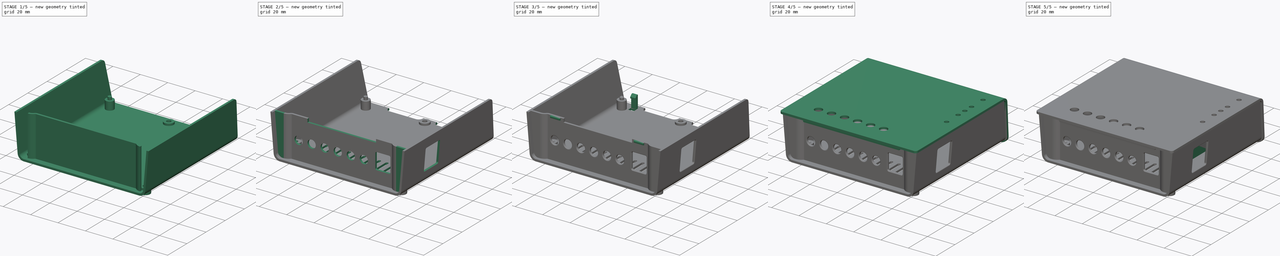
[diagram: build sequence overview — one tinted view per stage of 5, left to right]
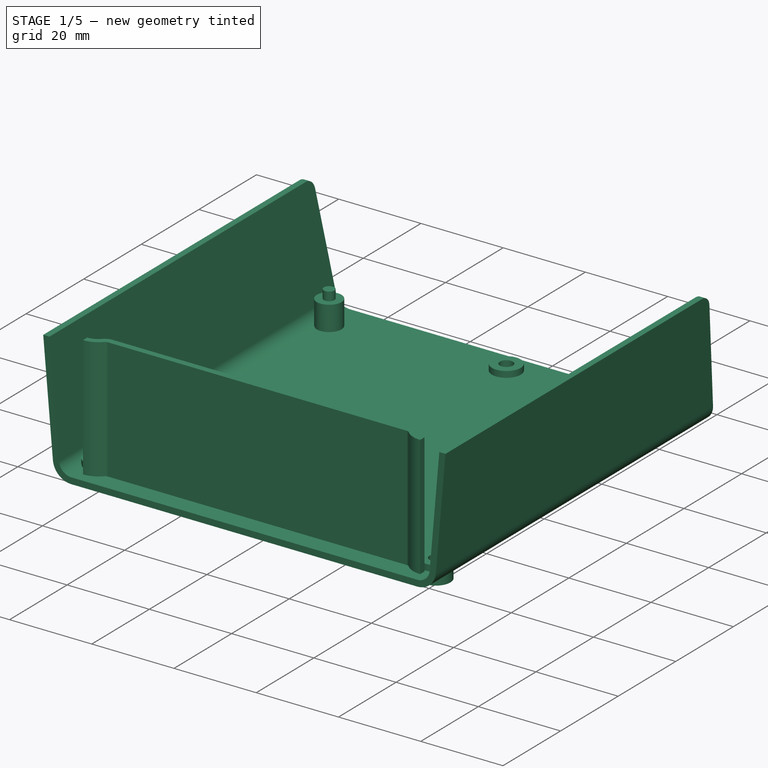
[diagram: stage 1 of 5 — iso view after this stage's code; geometry added in this stage tinted green]
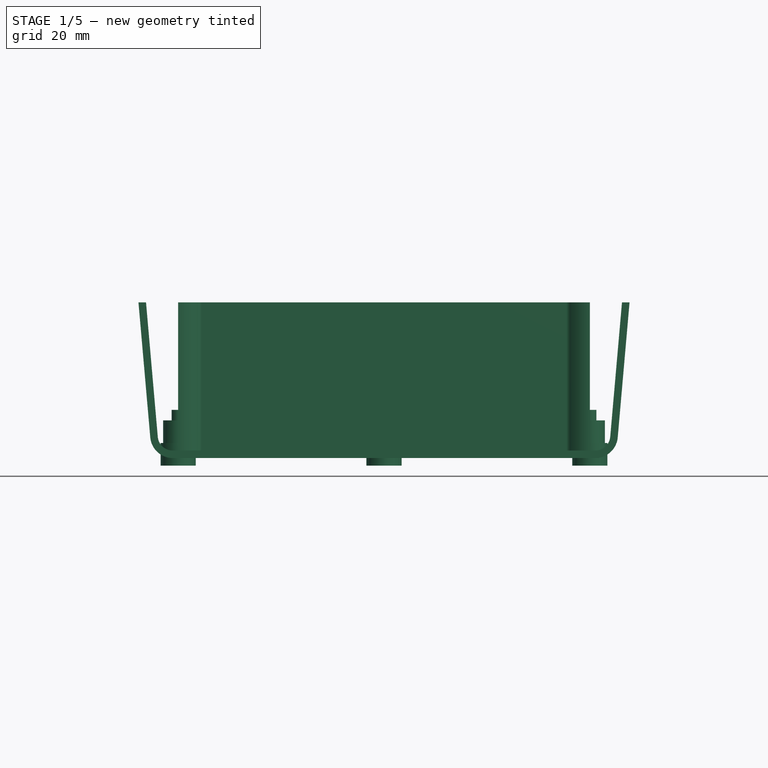
[diagram: stage 1 of 5 — front view after this stage's code; geometry added in this stage tinted green]
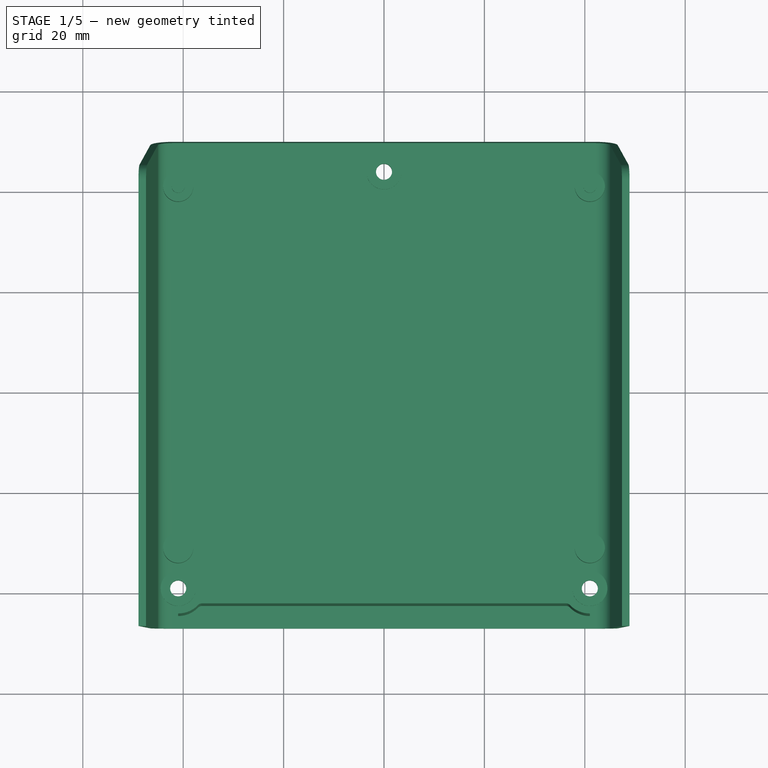
[diagram: stage 1 of 5 — top view after this stage's code; geometry added in this stage tinted green]
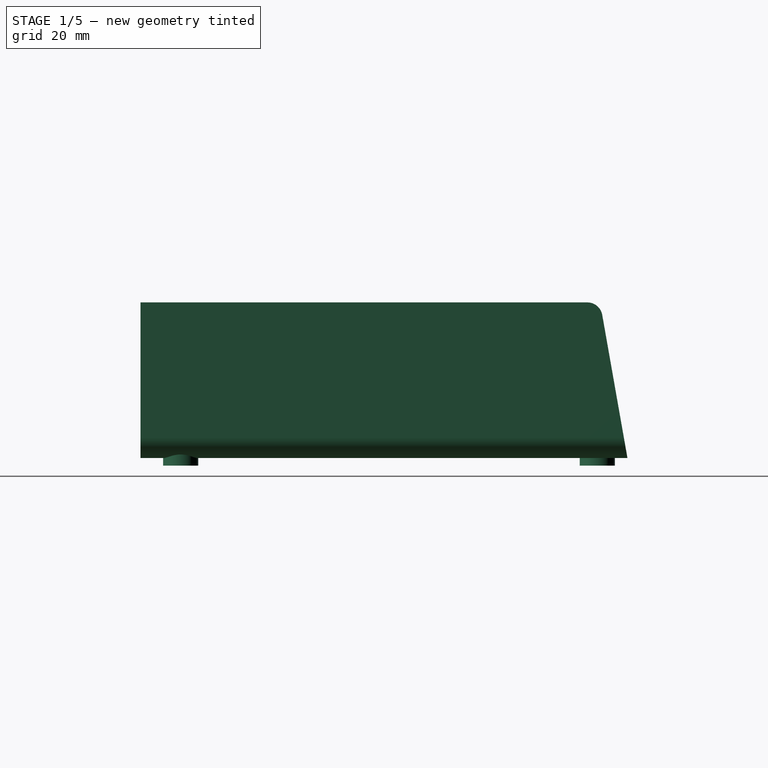
[diagram: stage 1 of 5 — right view after this stage's code; geometry added in this stage tinted green]
FCSTD DOCUMENT  (FreeCAD 0.18R16110 (Git))
Label: L-shaped-cover
License: All rights reserved
LicenseURL: http://en.wikipedia.org/wiki/All_rights_reserved
objects: Sketcher::SketchObject×25, PartDesign::Pad×14, PartDesign::Pocket×11, PartDesign::Fillet×6, PartDesign::Mirrored×2, PartDesign::Chamfer×2, PartDesign::Body×2, PartDesign::LinearPattern×1
note: 88 computed .brp shape members not serialized (recipe doc carries the construction recipe); baked Part::Feature solids carry a one-line shape summary decoded from their .brp

FEATURE [Sketcher::SketchObject] Sketch008
  MapMode = 5
  Placement = pos=(0,0,0) rot=(1,0,0;1.5708rad)
  Support = -> [XZ_Plane237]
  sketch-geometry (12):
    g0: LineSegment StartX=-42.0769 StartY=0 StartZ=0 EndX=42.0769 EndY=0 EndZ=0
    g1: LineSegment StartX=49 StartY=32 StartZ=0 EndX=47.4943 EndY=32 EndZ=0
    g2: ArcOfCircle CenterX=-42.0769 CenterY=4.5 CenterZ=0 NormalX=0 NormalY=0 NormalZ=1 AngleXU=0 Radius=4.5 StartAngle=3.22886 EndAngle=4.71239
    g3: ArcOfCircle CenterX=-42.0769 CenterY=4.5 CenterZ=0 NormalX=0 NormalY=0 NormalZ=1 AngleXU=0 Radius=3 StartAngle=3.22886 EndAngle=4.71239
    g4: ArcOfCircle CenterX=42.0769 CenterY=4.5 CenterZ=0 NormalX=0 NormalY=0 NormalZ=1 AngleXU=0 Radius=4.5 StartAngle=4.71239 EndAngle=6.19592
    g5: ArcOfCircle CenterX=42.0769 CenterY=4.5 CenterZ=0 NormalX=0 NormalY=0 NormalZ=1 AngleXU=0 Radius=3 StartAngle=4.71239 EndAngle=6.19592
    g6: LineSegment StartX=-42.0769 StartY=1.5 StartZ=0 EndX=42.0769 EndY=1.5 EndZ=0
    g7: LineSegment StartX=45.0655 StartY=4.23853 StartZ=0 EndX=47.4943 EndY=32 EndZ=0
    g8: LineSegment StartX=49 StartY=32 StartZ=0 EndX=46.5597 EndY=4.1078 EndZ=0
    g9: LineSegment StartX=-45.0655 StartY=4.23852 StartZ=0 EndX=-47.4943 EndY=32 EndZ=0
    g10: LineSegment StartX=-47.4943 StartY=32 StartZ=0 EndX=-49 EndY=32 EndZ=0
    g11: LineSegment StartX=-49 StartY=32 StartZ=0 EndX=-46.5597 EndY=4.1078 EndZ=0
  constraints (37):
    c: Horizontal(g0)
    c: Coincident(g2,g0)
    c: Coincident(g3,g2)
    c: Coincident(g4,g0)
    c: Coincident(g5,g4)
    c: Coincident(g6,g3)
    c: Horizontal(g6)
    c: Coincident(g7,g5)
    c: Coincident(g7,g1)
    c: Coincident(g8,g1)
    c: Coincident(g8,g4)
    c: Coincident(g9,g3)
    c: Coincident(g10,g9)
    c: Horizontal(g10)
    c: Coincident(g11,g10)
    c: Coincident(g11,g2)
    c: Tangent(g3,g9)
    c: Tangent(g2,g11)
    c: Tangent(g0,g2)
    c: Tangent(g6,g3)
    c: Tangent(g5,g6)
    c: Tangent(g4,g0)
    c: Tangent(g4,g8)
    c: Tangent(g7,g5)
    c: Horizontal(g1)
    c: Parallel(g11,g9)
    c: Parallel(g7,g8)
    c: Angle(g7,g6) = 1.65806
    c: Angle(g6,g9) = 1.65806
    c: Coincident(g6,g5)
    c: Distance(g10,g1) = 98
    c: Distance(g5,g0) = 1.5
    c: Equal(g9,g7)
    c: Radius(g5) = 3
    c: Equal(g3,g5)
    c: Symmetric(g0,g0,g-1)
    c: Distance(g9,g-1) = 32
FEATURE [PartDesign::Pad] Pad004
  Length = 7
  Length2 = 90
  Placement = pos=(0,0,0) rot=(1,0,0;1.5708rad)
  Profile = -> Sketch008
  Reversed = true
  Type = 4
FEATURE [Sketcher::SketchObject] Sketch009
  MapMode = 5
  Support = -> [XY_Plane237]
  sketch-geometry (4):
    g0: Circle CenterX=0 CenterY=84 CenterZ=0 NormalX=0 NormalY=0 NormalZ=1 AngleXU=0 Radius=3.5
    g1: Circle CenterX=-41 CenterY=1 CenterZ=0 NormalX=0 NormalY=0 NormalZ=1 AngleXU=0 Radius=3.5
    g2: Circle CenterX=41 CenterY=1 CenterZ=0 NormalX=0 NormalY=0 NormalZ=1 AngleXU=0 Radius=3.5
    g3: LineSegment [constr] StartX=-41 StartY=1 StartZ=0 EndX=41 EndY=1 EndZ=0
  constraints (13):
    c: PointOnObject(g0,g-2)
    c: Equal(g0,g1)
    c: Radius(g0) = 3.5
    c: Equal(g0,g2)
    c: Horizontal(g3)
    c: PointOnObject(g1,g3)
    c: PointOnObject(g2,g3)
    c: Distance(g0,g-1) = 84
    c: Distance(g3,g-1) = 1
    c: Coincident(g3,g1)
    c: Distance(g1,g-2) = 41
    c: Distance(g2,g-2) = 41
    c: Coincident(g3,g2)
FEATURE [PartDesign::Pad] Pad
  BaseFeature = -> Pad004
  Length = 3
  Length2 = 1.5
  Placement = pos=(0,0,0) rot=(1,0,0;1.5708rad)
  Profile = -> Sketch009
  Type = 4
FEATURE [Sketcher::SketchObject] Sketch010
  ExternalGeometry = -> [Pad]
  MapMode = 5
  Support = -> [XY_Plane237]
  sketch-geometry (3):
    g0: Circle CenterX=0 CenterY=84 CenterZ=0 NormalX=0 NormalY=0 NormalZ=1 AngleXU=0 Radius=1.6
    g1: Circle CenterX=-41 CenterY=1 CenterZ=0 NormalX=0 NormalY=0 NormalZ=1 AngleXU=0 Radius=1.6
    g2: Circle CenterX=41 CenterY=1 CenterZ=0 NormalX=0 NormalY=0 NormalZ=1 AngleXU=0 Radius=1.6
  constraints (6):
    c: Coincident(g0,g-5)
    c: Coincident(g1,g-3)
    c: Coincident(g2,g-4)
    c: Radius(g0) = 1.6
    c: Equal(g0,g2)
    c: Equal(g1,g0)
FEATURE [PartDesign::Pocket] Pocket004
  BaseFeature = -> Pad
  Length = 5
  Length2 = 100
  Midplane = true
  Placement = pos=(0,0,0) rot=(1,0,0;1.5708rad)
  Profile = -> Sketch010
  Type = 1
FEATURE [Sketcher::SketchObject] Sketch011
  AttachmentOffset = pos=(0,0,1) rot=(0,0,1;0rad)
  MapMode = 5
  Placement = pos=(0,0,1) rot=(0,0,1;0rad)
  Support = -> [XY_Plane237]
  sketch-geometry (4):
    g0: Circle CenterX=-41 CenterY=81 CenterZ=0 NormalX=0 NormalY=0 NormalZ=1 AngleXU=0 Radius=3
    g1: Circle CenterX=41 CenterY=81 CenterZ=0 NormalX=0 NormalY=0 NormalZ=1 AngleXU=0 Radius=3
    g2: Circle CenterX=41 CenterY=9 CenterZ=0 NormalX=0 NormalY=0 NormalZ=1 AngleXU=0 Radius=3
    g3: Circle CenterX=-41 CenterY=9 CenterZ=0 NormalX=0 NormalY=0 NormalZ=1 AngleXU=0 Radius=3
  constraints (12):
    c: Distance(g0,g1) = 82
    c: Distance(g3,g2) = 82
    c: Equal(g0,g1)
    c: Equal(g3,g0)
    c: Equal(g0,g2)
    c: Radius(g0) = 3
    c: Distance(g3,g-1) = 9
    c: Distance(g2,g-1) = 9
    c: Distance(g1,g-1) = 81
    c: Distance(g0,g-1) = 81
    c: Symmetric(g0,g1,g-2)
    c: Symmetric(g3,g2,g-2)
FEATURE [PartDesign::Pad] Pad005
  BaseFeature = -> Pocket004
  Length = 6.5
  Length2 = 100
  Placement = pos=(0,0,0) rot=(1,0,0;1.5708rad)
  Profile = -> Sketch011
  Type = 0
FEATURE [Sketcher::SketchObject] Sketch012
  AttachmentOffset = pos=(0,0,2) rot=(0,0,1;0rad)
  ExternalGeometry = -> [Pad005]
  MapMode = 5
  Placement = pos=(0,0,2) rot=(0,0,1;0rad)
  Support = -> [XY_Plane237]
  sketch-geometry (2):
    g0: Circle CenterX=-41 CenterY=81 CenterZ=0 NormalX=0 NormalY=0 NormalZ=1 AngleXU=0 Radius=1.3
    g1: Circle CenterX=41 CenterY=81 CenterZ=0 NormalX=0 NormalY=0 NormalZ=1 AngleXU=0 Radius=1.3
  constraints (4):
    c: Coincident(g0,g-3)
    c: Radius(g0) = 1.3
    c: Coincident(g1,g-6)
    c: Equal(g0,g1)
FEATURE [Sketcher::SketchObject] Sketch013
  MapMode = 5
  Placement = pos=(0,0,0) rot=(0.57735,0.57735,0.57735;2.0944rad)
  Support = -> [YZ_Plane237]
  sketch-geometry (7):
    g0: LineSegment StartX=90 StartY=0 StartZ=0 EndX=84.971 EndY=28.5209 EndZ=0
    g1: LineSegment StartX=110 StartY=40 StartZ=0 EndX=110 EndY=0 EndZ=0
    g2: LineSegment StartX=110 StartY=0 StartZ=0 EndX=90 EndY=0 EndZ=0
    g3: ArcOfCircle CenterX=82.0166 CenterY=28 CenterZ=0 NormalX=0 NormalY=0 NormalZ=1 AngleXU=0 Radius=3 StartAngle=0.174527 EndAngle=1.5708
    g4: LineSegment StartX=-10 StartY=31 StartZ=0 EndX=82.0165 EndY=31 EndZ=0
    g5: LineSegment StartX=-10 StartY=40 StartZ=0 EndX=110 EndY=40 EndZ=0
    g6: LineSegment StartX=-10 StartY=40 StartZ=0 EndX=-10 EndY=31 EndZ=0
  constraints (22):
    c: Vertical(g1)
    c: Coincident(g1,g2)
    c: Coincident(g2,g0)
    c: Angle(g2,g0) = 1.74533
    c: Coincident(g3,g0)
    c: Coincident(g4,g3)
    c: Horizontal(g4)
    c: Coincident(g5,g1)
    c: Horizontal(g5)
    c: Tangent(g3,g0)
    c: Tangent(g3,g4)
    c: Coincident(g6,g5)
    c: Coincident(g6,g4)
    c: Vertical(g6)
    c: Distance(g5,g-2) = 10
    c: Distance(g4,g-1) = 31
    c: Distance(g0,g-2) = 90
    c: Distance(g5) = 120
    c: Distance(g1) = 40
    c: Horizontal(g2)
    c: PointOnObject(g0,g-1)
    c: Radius(g3) = 3
FEATURE [PartDesign::Pocket] Pocket005
  BaseFeature = -> Pad005
  Length = 5
  Length2 = 100
  Midplane = true
  Placement = pos=(0,0,0) rot=(1,0,0;1.5708rad)
  Profile = -> Sketch013
  Type = 1
FEATURE [PartDesign::Pad] Pad008  label="PCB_Pins_Top"
  BaseFeature = -> Pocket005
  Length = 7.6
  Length2 = 100
  Placement = pos=(0,0,0) rot=(1,0,0;1.5708rad)
  Profile = -> Sketch012
  Type = 0
FEATURE [Sketcher::SketchObject] Sketch
  AttachmentOffset = pos=(0,0,1) rot=(0,0,1;0rad)
  MapMode = 5
  Placement = pos=(0,0,1) rot=(0,0,1;0rad)
  Support = -> [XY_Plane237]
  sketch-geometry (13):
    g0: LineSegment StartX=-36.3096 StartY=-1 StartZ=0 EndX=36.3096 EndY=-1 EndZ=0
    g1: LineSegment StartX=36.3096 StartY=-2.5 StartZ=0 EndX=-36.3096 EndY=-2.5 EndZ=0
    g2: ArcOfCircle CenterX=36.3096 CenterY=-3.5 CenterZ=0 NormalX=0 NormalY=0 NormalZ=1 AngleXU=0 Radius=1 StartAngle=0.764688 EndAngle=1.5708
    g3: ArcOfCircle CenterX=41 CenterY=1 CenterZ=0 NormalX=0 NormalY=0 NormalZ=1 AngleXU=0 Radius=5.5 StartAngle=3.90627 EndAngle=4.71239
    g4: ArcOfCircle CenterX=36.3096 CenterY=-3.5 CenterZ=0 NormalX=0 NormalY=0 NormalZ=1 AngleXU=0 Radius=2.5 StartAngle=0.764681 EndAngle=1.5708
    g5: ArcOfCircle CenterX=41 CenterY=1 CenterZ=0 NormalX=0 NormalY=0 NormalZ=1 AngleXU=0 Radius=4 StartAngle=3.90628 EndAngle=4.71239
    g6: ArcOfCircle CenterX=-36.3096 CenterY=-3.5 CenterZ=0 NormalX=0 NormalY=0 NormalZ=1 AngleXU=0 Radius=1 StartAngle=1.5708 EndAngle=2.37692
    g7: ArcOfCircle CenterX=-41 CenterY=1 CenterZ=0 NormalX=0 NormalY=0 NormalZ=1 AngleXU=0 Radius=5.5 StartAngle=4.71239 EndAngle=5.5185
    g8: ArcOfCircle CenterX=-36.3096 CenterY=-3.5 CenterZ=0 NormalX=0 NormalY=0 NormalZ=1 AngleXU=0 Radius=2.5 StartAngle=1.5708 EndAngle=2.37691
    g9: ArcOfCircle CenterX=-41 CenterY=1 CenterZ=0 NormalX=0 NormalY=0 NormalZ=1 AngleXU=0 Radius=4 StartAngle=4.71239 EndAngle=5.5185
    g10: LineSegment StartX=41 StartY=-3 StartZ=0 EndX=41 EndY=-4.5 EndZ=0
    g11: LineSegment StartX=-41 StartY=-3 StartZ=0 EndX=-41 EndY=-4.5 EndZ=0
    g12: LineSegment [constr] StartX=-41 StartY=1 StartZ=0 EndX=41 EndY=1 EndZ=0
  constraints (42):
    c: Horizontal(g0)
    c: Horizontal(g1)
    c: Coincident(g2,g1)
    c: Coincident(g3,g2)
    c: Coincident(g4,g0)
    c: Coincident(g5,g3)
    c: Coincident(g6,g1)
    c: Coincident(g7,g6)
    c: Coincident(g8,g6)
    c: Coincident(g8,g0)
    c: Coincident(g9,g8)
    c: Tangent(g8,g0)
    c: Tangent(g9,g8)
    c: Tangent(g7,g6)
    c: Tangent(g1,g6)
    c: Tangent(g2,g1)
    c: Tangent(g0,g4)
    c: Tangent(g5,g4)
    c: Tangent(g3,g2)
    c: Coincident(g5,g4)
    c: Equal(g6,g2)
    c: Equal(g5,g9)
    c: Coincident(g2,g4)
    c: Coincident(g10,g5)
    c: Coincident(g10,g3)
    c: Vertical(g10)
    c: Coincident(g11,g9)
    c: Distance(g0,g1) = 1.5
    c: Perpendicular(g9,g11)
    c: Vertical(g11)
    c: Coincident(g11,g7)
    c: Coincident(g9,g7)
    c: Perpendicular(g5,g10)
    c: Radius(g6) = 1
    c: Distance(g7,g-2) = 41
    c: Distance(g3,g-2) = 41
    c: Coincident(g12,g7)
    c: Coincident(g12,g3)
    c: Horizontal(g12)
    c: Distance(g3,g-1) = 1
    c: Distance(g0,g-1) = 1
    c: Radius(g7) = 5.5
FEATURE [PartDesign::Pad] Pad009
  BaseFeature = -> Pad008
  Length = 30
  Length2 = 100
  Placement = pos=(0,0,0) rot=(1,0,0;1.5708rad)
  Profile = -> Sketch
  Type = 0
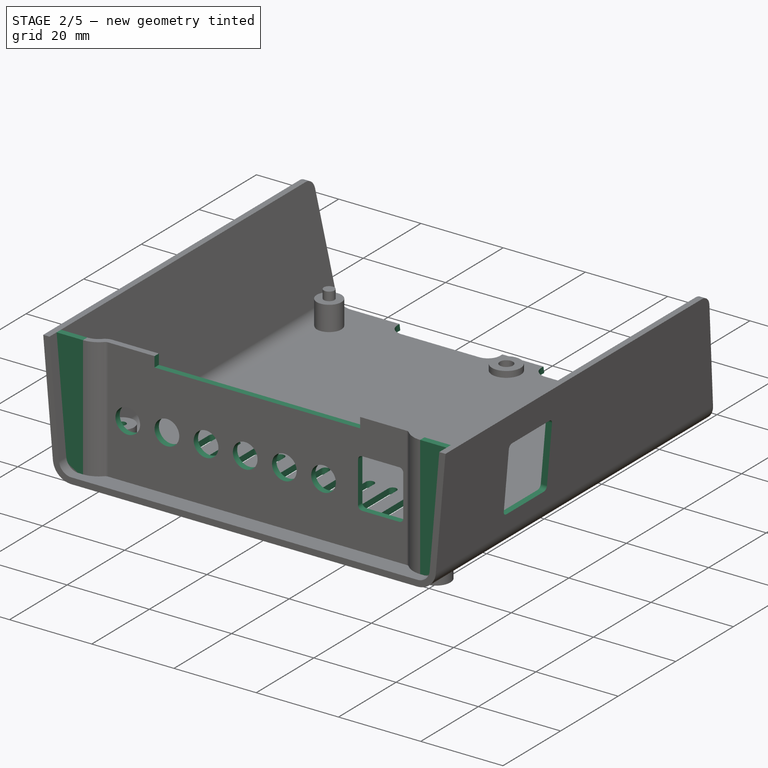
[diagram: stage 2 of 5 — iso view after this stage's code; geometry added in this stage tinted green]
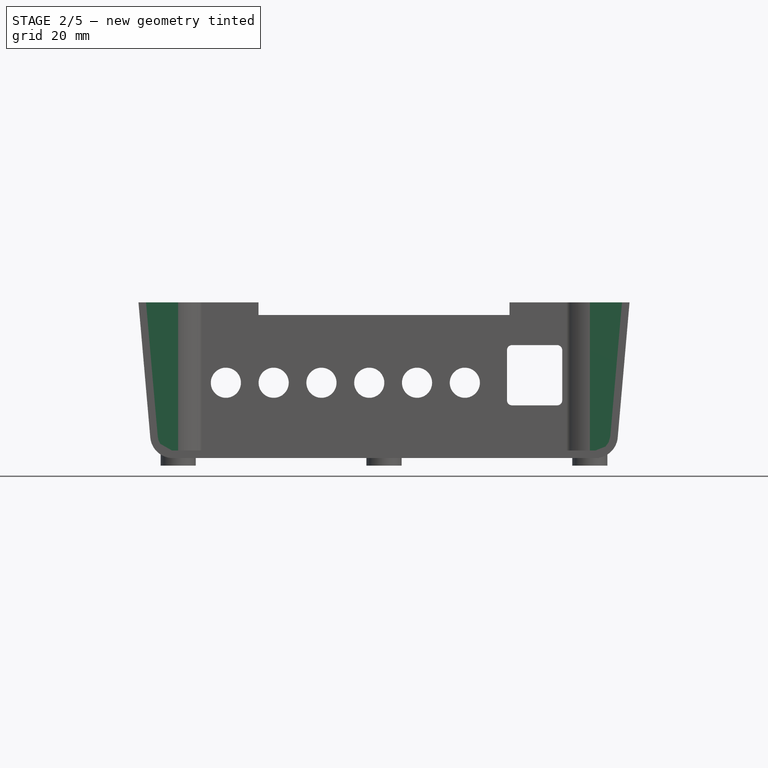
[diagram: stage 2 of 5 — front view after this stage's code; geometry added in this stage tinted green]
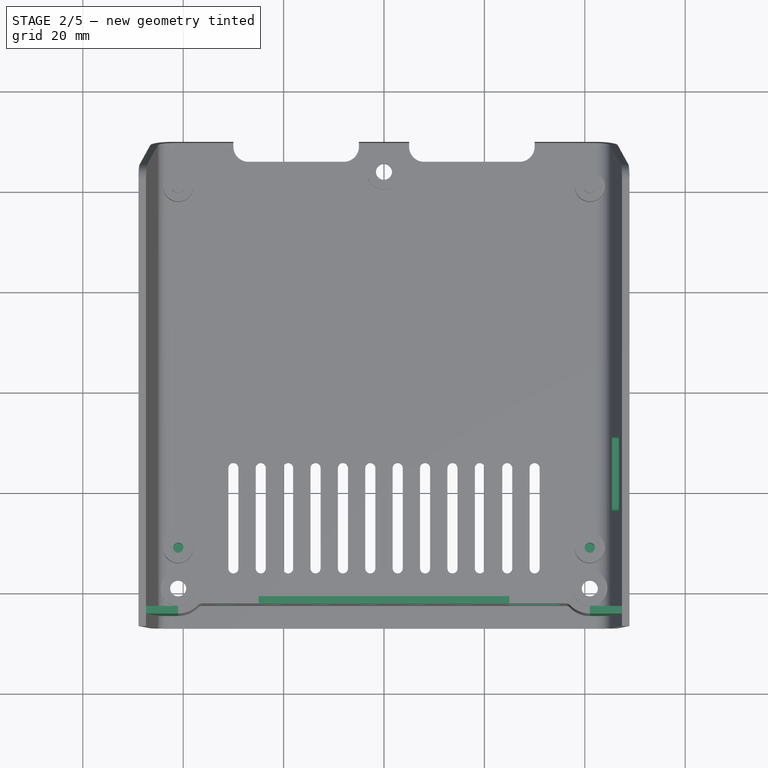
[diagram: stage 2 of 5 — top view after this stage's code; geometry added in this stage tinted green]
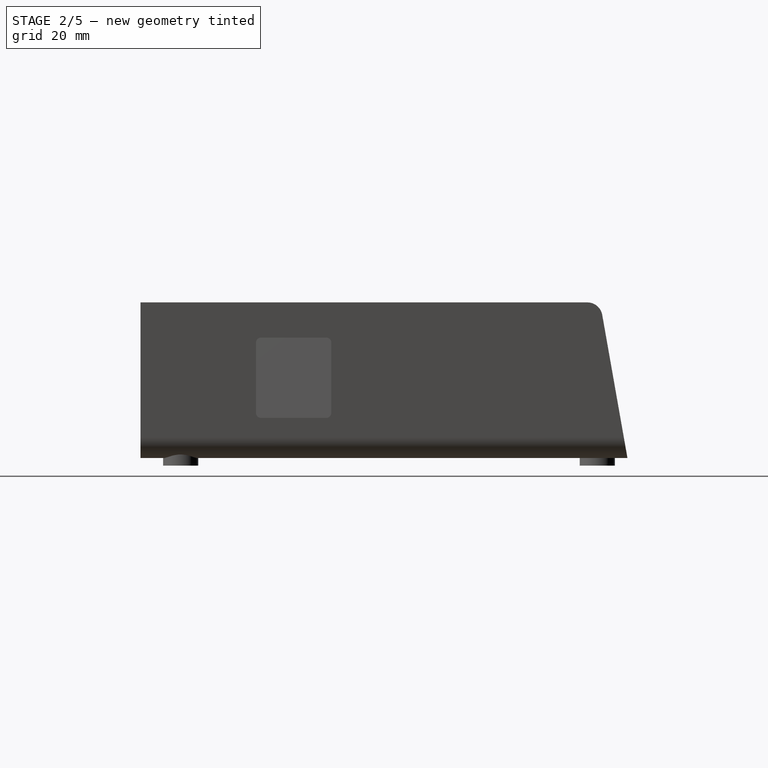
[diagram: stage 2 of 5 — right view after this stage's code; geometry added in this stage tinted green]
FEATURE [Sketcher::SketchObject] Sketch017
  AttachmentOffset = pos=(0,0,3) rot=(0,0,1;0rad)
  ExternalGeometry = -> [Pad009]
  MapMode = 5
  Placement = pos=(0,-3,-3.104e-13) rot=(1,0,0;1.5708rad)
  Support = -> [XZ_Plane237]
  sketch-geometry (8):
    g0: LineSegment StartX=-48 StartY=31 StartZ=0 EndX=-41 EndY=31 EndZ=0
    g1: LineSegment StartX=48 StartY=31 StartZ=0 EndX=41 EndY=31 EndZ=0
    g2: LineSegment StartX=41 StartY=1 StartZ=0 EndX=41 EndY=31 EndZ=0
    g3: ArcOfCircle CenterX=41.8355 CenterY=5.92969 CenterZ=0 NormalX=0 NormalY=0 NormalZ=1 AngleXU=0 Radius=5 StartAngle=4.54449 EndAngle=5.53788
    g4: ArcOfCircle CenterX=-41.8355 CenterY=5.92969 CenterZ=0 NormalX=0 NormalY=0 NormalZ=1 AngleXU=0 Radius=5 StartAngle=3.8869 EndAngle=4.88029
    g5: LineSegment StartX=-41 StartY=31 StartZ=0 EndX=-41 EndY=1 EndZ=0
    g6: LineSegment StartX=-48 StartY=31 StartZ=0 EndX=-45.51 EndY=2.53872 EndZ=0
    g7: LineSegment StartX=48 StartY=31 StartZ=0 EndX=45.51 EndY=2.53872 EndZ=0
  constraints (26):
    c: Distance(g0,g-2) = 41
    c: Coincident(g5,g0)
    c: Coincident(g2,g1)
    c: Vertical(g2)
    c: Vertical(g5)
    c: Horizontal(g0)
    c: Horizontal(g1)
    c: Coincident(g4,g5)
    c: Coincident(g3,g2)
    c: Coincident(g6,g0)
    c: Coincident(g6,g4)
    c: Coincident(g7,g1)
    c: Coincident(g7,g3)
    c: Angle(g1,g7) = 1.48353
    c: Angle(g6,g0) = 1.48353
    c: Distance(g0,g0) = 7
    c: Distance(g1) = 7
    c: Distance(g2) = 30
    c: Distance(g5) = 30
    c: Distance(g0,g-1) = 31
    c: Distance(g1,g-1) = 31
    c: Distance(g1,g-2) = 41
    c: Distance(g6) = 28.57
    c: Equal(g4,g3)
    c: Radius(g4) = 5
    c: Equal(g7,g6)
FEATURE [PartDesign::Pad] Pad010
  BaseFeature = -> Pad009
  Length = 1.5
  Length2 = 100
  Placement = pos=(0,0,0) rot=(1,0,0;1.5708rad)
  Profile = -> Sketch017
  Type = 0
FEATURE [Sketcher::SketchObject] Sketch018
  MapMode = 5
  Placement = pos=(0,0,0) rot=(1,0,0;1.5708rad)
  Support = -> [XZ_Plane237]
  sketch-geometry (19):
    g0: LineSegment StartX=25.5 StartY=22.5 StartZ=0 EndX=34.5 EndY=22.5 EndZ=0
    g1: LineSegment StartX=35.5 StartY=21.5 StartZ=0 EndX=35.5 EndY=11.5 EndZ=0
    g2: LineSegment StartX=34.5 StartY=10.5 StartZ=0 EndX=25.5 EndY=10.5 EndZ=0
    g3: LineSegment StartX=24.5 StartY=11.5 StartZ=0 EndX=24.5 EndY=21.5 EndZ=0
    g4: Circle CenterX=-31.5 CenterY=15 CenterZ=0 NormalX=0 NormalY=0 NormalZ=1 AngleXU=0 Radius=3
    g5: Circle CenterX=-21.98 CenterY=15 CenterZ=0 NormalX=0 NormalY=0 NormalZ=1 AngleXU=0 Radius=3
    g6: Circle CenterX=-12.46 CenterY=15 CenterZ=0 NormalX=0 NormalY=0 NormalZ=1 AngleXU=0 Radius=3
    g7: Circle CenterX=-2.94 CenterY=15 CenterZ=0 NormalX=0 NormalY=0 NormalZ=1 AngleXU=0 Radius=3
    g8: Circle CenterX=6.58 CenterY=15 CenterZ=0 NormalX=0 NormalY=0 NormalZ=1 AngleXU=0 Radius=3
    g9: Circle CenterX=16.1 CenterY=15 CenterZ=0 NormalX=0 NormalY=0 NormalZ=1 AngleXU=0 Radius=3
    g10: LineSegment [constr] StartX=-31.5 StartY=15 StartZ=0 EndX=16.1 EndY=15 EndZ=0
    g11: ArcOfCircle CenterX=25.5 CenterY=21.5 CenterZ=0 NormalX=0 NormalY=0 NormalZ=1 AngleXU=0 Radius=1 StartAngle=1.5708 EndAngle=3.14159
    g12: ArcOfCircle CenterX=34.5 CenterY=21.5 CenterZ=0 NormalX=0 NormalY=0 NormalZ=1 AngleXU=0 Radius=1 StartAngle=6.28319 EndAngle=7.85398
    g13: ArcOfCircle CenterX=25.5 CenterY=11.5 CenterZ=0 NormalX=0 NormalY=0 NormalZ=1 AngleXU=0 Radius=1 StartAngle=3.14159 EndAngle=4.7124
    g14: ArcOfCircle CenterX=34.5 CenterY=11.5 CenterZ=0 NormalX=0 NormalY=0 NormalZ=1 AngleXU=0 Radius=1 StartAngle=4.71239 EndAngle=6.28319
    g15: LineSegment StartX=-25 StartY=28.5 StartZ=0 EndX=25 EndY=28.5 EndZ=0
    g16: LineSegment StartX=25 StartY=28.5 StartZ=0 EndX=25 EndY=38.5 EndZ=0
    g17: LineSegment StartX=25 StartY=38.5 StartZ=0 EndX=-25 EndY=38.5 EndZ=0
    g18: LineSegment StartX=-25 StartY=38.5 StartZ=0 EndX=-25 EndY=28.5 EndZ=0
  constraints (62):
    c: Horizontal(g0)
    c: Horizontal(g2)
    c: Vertical(g1)
    c: Vertical(g3)
    c: Distance(g4,g5) = 9.52
    c: Horizontal(g10)
    c: Distance(g10,g-1) = 15
    c: PointOnObject(g4,g10)
    c: PointOnObject(g5,g10)
    c: PointOnObject(g6,g10)
    c: PointOnObject(g7,g10)
    c: PointOnObject(g8,g10)
    c: PointOnObject(g9,g10)
    c: Distance(g5,g6) = 9.52
    c: Distance(g6,g7) = 9.52
    c: Distance(g7,g8) = 9.52
    c: Distance(g8,g9) = 9.52
    c: Distance(g4,g-2) = 31.5
    c: Coincident(g0,g11)
    c: Coincident(g3,g11)
    c: Coincident(g1,g12)
    c: Coincident(g0,g12)
    c: Coincident(g2,g14)
    c: Coincident(g1,g14)
    c: Coincident(g2,g13)
    c: Coincident(g3,g13)
    c: Distance(g3,g-2) = 24.5
    c: Distance(g2,g-1) = 10.5
    c: Distance(g3,g1) = 11
    c: Tangent(g0,g11)
    c: Tangent(g11,g3)
    c: Tangent(g1,g12)
    c: Tangent(g0,g12)
    c: Tangent(g2,g14)
    c: Tangent(g1,g14)
    c: Tangent(g3,g13)
    c: Radius(g11) = 1
    c: Equal(g11,g12)
    c: Equal(g11,g14)
    c: Equal(g11,g13)
    c: Distance(g0,g2) = 12
    c: Coincident(g15,g16)
    c: Coincident(g16,g17)
    c: Coincident(g17,g18)
    c: Coincident(g18,g15)
    c: Horizontal(g15)
    c: Horizontal(g17)
    c: Vertical(g16)
    c: Vertical(g18)
    c: Distance(g15,g-1) = 28.5
    c: Distance(g16) = 10
    c: Coincident(g10,g4)
    c: Coincident(g9,g10)
    c: Equal(g4,g5)
    c: Equal(g5,g6)
    c: Equal(g6,g7)
    c: Equal(g8,g7)
    c: Equal(g8,g9)
    c: Radius(g4) = 3
    c: Tangent(g2,g13)
    c: Symmetric(g17,g16,g-2)
    c: Distance(g17) = 50
FEATURE [PartDesign::Pocket] Pocket  label="Terminal_Holes"
  BaseFeature = -> Pad010
  Length = 5
  Length2 = 100
  Placement = pos=(0,0,0) rot=(1,0,0;1.5708rad)
  Profile = -> Sketch018
  Reversed = true
  Type = 0
FEATURE [Sketcher::SketchObject] Sketch019
  MapMode = 5
  Support = -> [XY_Plane237]
  sketch-geometry (4):
    g0: LineSegment StartX=-29 StartY=25 StartZ=0 EndX=-29 EndY=5 EndZ=0
    g1: LineSegment StartX=-31 StartY=5 StartZ=0 EndX=-31 EndY=25 EndZ=0
    g2: ArcOfCircle CenterX=-30 CenterY=25 CenterZ=0 NormalX=0 NormalY=0 NormalZ=1 AngleXU=0 Radius=1 StartAngle=6.28318 EndAngle=9.42478
    g3: ArcOfCircle CenterX=-30 CenterY=5 CenterZ=0 NormalX=0 NormalY=0 NormalZ=1 AngleXU=0 Radius=1 StartAngle=3.14159 EndAngle=6.28319
  constraints (14):
    c: Vertical(g0)
    c: Vertical(g1)
    c: Distance(g0) = 20
    c: Distance(g1,g-1) = 5
    c: Coincident(g2,g1)
    c: Coincident(g2,g0)
    c: Coincident(g3,g1)
    c: Coincident(g3,g0)
    c: Tangent(g3,g1)
    c: Tangent(g2,g1)
    c: Tangent(g2,g0)
    c: Tangent(g0,g3)
    c: Distance(g3,g-2) = 30
    c: Distance(g1,g0) = 2
FEATURE [PartDesign::Pocket] Pocket007
  BaseFeature = -> Pocket
  Length = 5
  Length2 = 100
  Placement = pos=(0,0,0) rot=(1,0,0;1.5708rad)
  Profile = -> Sketch019
  Reversed = true
  Type = 0
FEATURE [PartDesign::LinearPattern] LinearPattern
  BaseFeature = -> Pocket007
  Direction = -> Sketch019 [H_Axis]
  Length = 60
  Occurrences = 12
  Originals = -> [Pocket007]
  Placement = pos=(0,0,0) rot=(1,0,0;1.5708rad)
FEATURE [Sketcher::SketchObject] Sketch020
  MapMode = 5
  Support = -> [XY_Plane237]
  sketch-geometry (12):
    g0: LineSegment StartX=-27 StartY=86 StartZ=0 EndX=-8 EndY=86 EndZ=0
    g1: LineSegment StartX=8 StartY=86 StartZ=0 EndX=27 EndY=86 EndZ=0
    g2: ArcOfCircle CenterX=-27 CenterY=89 CenterZ=0 NormalX=0 NormalY=0 NormalZ=1 AngleXU=0 Radius=3 StartAngle=3.14159 EndAngle=4.71239
    g3: ArcOfCircle CenterX=-8 CenterY=89 CenterZ=0 NormalX=0 NormalY=0 NormalZ=1 AngleXU=0 Radius=3 StartAngle=4.71239 EndAngle=6.28319
    g4: ArcOfCircle CenterX=8 CenterY=89 CenterZ=0 NormalX=0 NormalY=0 NormalZ=1 AngleXU=0 Radius=3 StartAngle=3.1416 EndAngle=4.71239
    g5: ArcOfCircle CenterX=27 CenterY=89 CenterZ=0 NormalX=0 NormalY=0 NormalZ=1 AngleXU=0 Radius=3 StartAngle=4.71239 EndAngle=6.28318
    g6: LineSegment StartX=-30 StartY=89 StartZ=0 EndX=-30 EndY=96 EndZ=0
    g7: LineSegment StartX=-5 StartY=89 StartZ=0 EndX=-5 EndY=96 EndZ=0
    g8: LineSegment StartX=-30 StartY=96 StartZ=0 EndX=-5 EndY=96 EndZ=0
    g9: LineSegment StartX=5 StartY=89 StartZ=0 EndX=5 EndY=96 EndZ=0
    g10: LineSegment StartX=5 StartY=96 StartZ=0 EndX=30 EndY=96 EndZ=0
    g11: LineSegment StartX=30 StartY=89 StartZ=0 EndX=30 EndY=96 EndZ=0
  constraints (40):
    c: Horizontal(g0)
    c: Horizontal(g1)
    c: Coincident(g2,g0)
    c: Coincident(g3,g0)
    c: Coincident(g4,g1)
    c: Coincident(g5,g1)
    c: Coincident(g6,g2)
    c: Vertical(g6)
    c: Coincident(g7,g3)
    c: Vertical(g7)
    c: Coincident(g8,g6)
    c: Horizontal(g8)
    c: Coincident(g9,g4)
    c: Vertical(g9)
    c: Coincident(g10,g9)
    c: Horizontal(g10)
    c: Coincident(g11,g5)
    c: Coincident(g11,g10)
    c: Vertical(g11)
    c: Tangent(g3,g7)
    c: Tangent(g3,g0)
    c: Tangent(g4,g1)
    c: Tangent(g9,g4)
    c: Tangent(g11,g5)
    c: Tangent(g1,g5)
    c: Tangent(g0,g2)
    c: Tangent(g6,g2)
    c: Coincident(g7,g8)
    c: Distance(g0,g-1) = 86
    c: Distance(g1,g-1) = 86
    c: Distance(g7,g-2) = 5
    c: Distance(g9,g-2) = 5
    c: Equal(g3,g4)
    c: Equal(g2,g3)
    c: Equal(g4,g5)
    c: Radius(g2) = 3
    c: Distance(g8) = 25
    c: Distance(g6,g0) = 10
    c: Equal(g9,g7)
    c: Equal(g8,g10)
FEATURE [PartDesign::Pocket] Pocket008  label="Slots_Top"
  BaseFeature = -> LinearPattern
  Length = 5
  Length2 = 100
  Placement = pos=(0,0,0) rot=(1,0,0;1.5708rad)
  Profile = -> Sketch020
  Reversed = true
  Type = 0
FEATURE [Sketcher::SketchObject] Sketch023
  AttachmentOffset = pos=(0,0,52) rot=(0,0,1;0rad)
  MapMode = 5
  Placement = pos=(52,-5.8713e-12,5.8713e-12) rot=(0.57735,0.57735,0.57735;2.0944rad)
  Support = -> [YZ_Plane237]
  sketch-geometry (8):
    g0: LineSegment StartX=17 StartY=24 StartZ=0 EndX=30 EndY=24 EndZ=0
    g1: LineSegment StartX=31 StartY=23 StartZ=0 EndX=31 EndY=9 EndZ=0
    g2: LineSegment StartX=30 StartY=8 StartZ=0 EndX=17 EndY=8 EndZ=0
    g3: LineSegment StartX=16 StartY=9 StartZ=0 EndX=16 EndY=23 EndZ=0
    g4: ArcOfCircle CenterX=17 CenterY=23 CenterZ=0 NormalX=0 NormalY=0 NormalZ=1 AngleXU=0 Radius=1 StartAngle=1.5708 EndAngle=3.14159
    g5: ArcOfCircle CenterX=30 CenterY=23 CenterZ=0 NormalX=0 NormalY=0 NormalZ=1 AngleXU=0 Radius=1 StartAngle=0 EndAngle=1.5708
    g6: ArcOfCircle CenterX=30 CenterY=9 CenterZ=0 NormalX=0 NormalY=0 NormalZ=1 AngleXU=0 Radius=1 StartAngle=4.71239 EndAngle=6.28319
    g7: ArcOfCircle CenterX=17 CenterY=9 CenterZ=0 NormalX=0 NormalY=0 NormalZ=1 AngleXU=0 Radius=1 StartAngle=3.14159 EndAngle=4.71239
  constraints (20):
    c: Horizontal(g0)
    c: Horizontal(g2)
    c: Vertical(g1)
    c: Vertical(g3)
    c: Tangent(g3,g4) = 1.5708
    c: Tangent(g0,g4) = 1.5708
    c: Tangent(g0,g5) = 1.5708
    c: Tangent(g1,g5) = 1.5708
    c: Tangent(g1,g6) = 1.5708
    c: Tangent(g2,g6) = 1.5708
    c: Tangent(g3,g7) = 1.5708
    c: Tangent(g2,g7) = 1.5708
    c: Distance(g0,g-1) = 24
    c: Distance(g3,g-2) = 16
    c: Distance(g3,g1) = 15
    c: Distance(g0,g2) = 16
    c: Equal(g4,g5)
    c: Equal(g5,g6)
    c: Equal(g6,g7)
    c: Radius(g7) = 1
FEATURE [PartDesign::Pocket] Pocket010  label="USB"
  BaseFeature = -> Pocket008
  Length = 10
  Length2 = 100
  Placement = pos=(0,0,0) rot=(1,0,0;1.5708rad)
  Profile = -> Sketch023
  Type = 0
FEATURE [Sketcher::SketchObject] Sketch024
  AttachmentOffset = pos=(0,0,8) rot=(0,0,1;0rad)
  ExternalGeometry = -> [Pocket010]
  MapMode = 5
  Placement = pos=(0,0,8) rot=(0,0,1;0rad)
  Support = -> [XY_Plane237]
  sketch-geometry (2):
    g0: Circle CenterX=-41 CenterY=9 CenterZ=0 NormalX=0 NormalY=0 NormalZ=1 AngleXU=0 Radius=1
    g1: Circle CenterX=41 CenterY=9 CenterZ=0 NormalX=0 NormalY=0 NormalZ=1 AngleXU=0 Radius=1
  constraints (4):
    c: Radius(g0) = 1
    c: Equal(g0,g1)
    c: Coincident(g1,g-4)
    c: Coincident(g-3,g0)
FEATURE [PartDesign::Pocket] Pocket011
  BaseFeature = -> Pocket010
  Length = 6.5
  Length2 = 100
  Placement = pos=(0,0,0) rot=(1,0,0;1.5708rad)
  Profile = -> Sketch024
  Type = 0
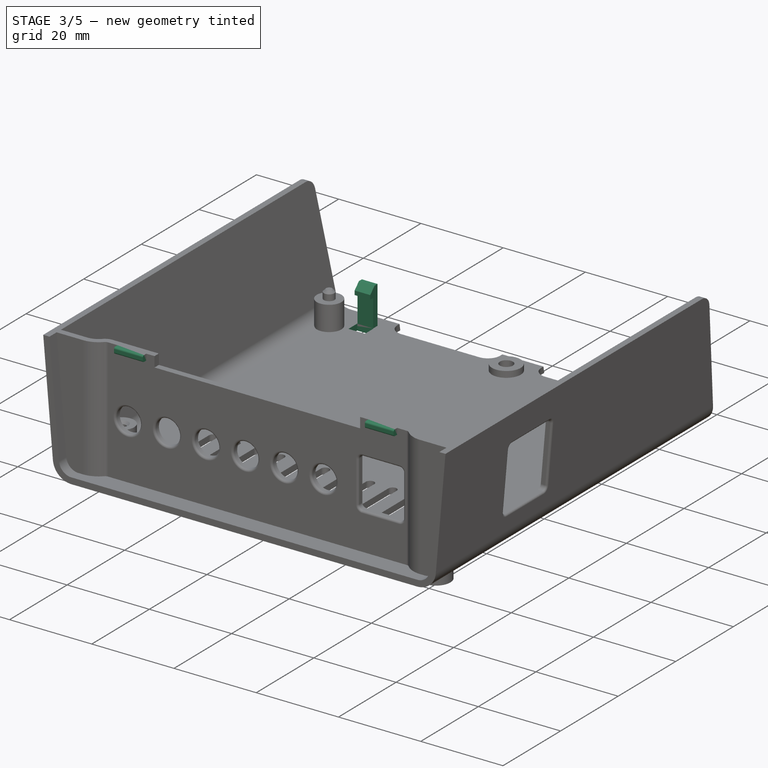
[diagram: stage 3 of 5 — iso view after this stage's code; geometry added in this stage tinted green]
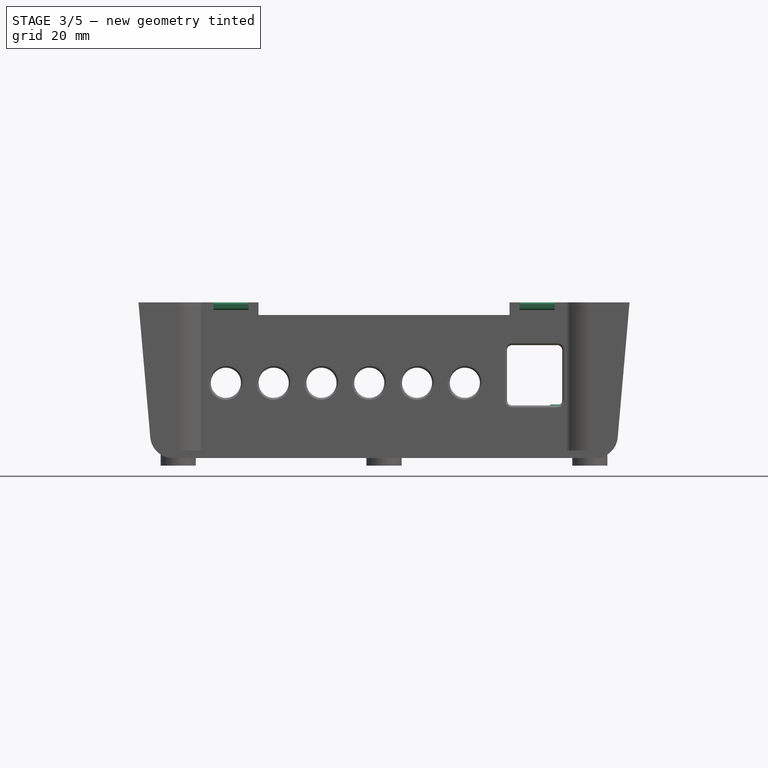
[diagram: stage 3 of 5 — front view after this stage's code; geometry added in this stage tinted green]
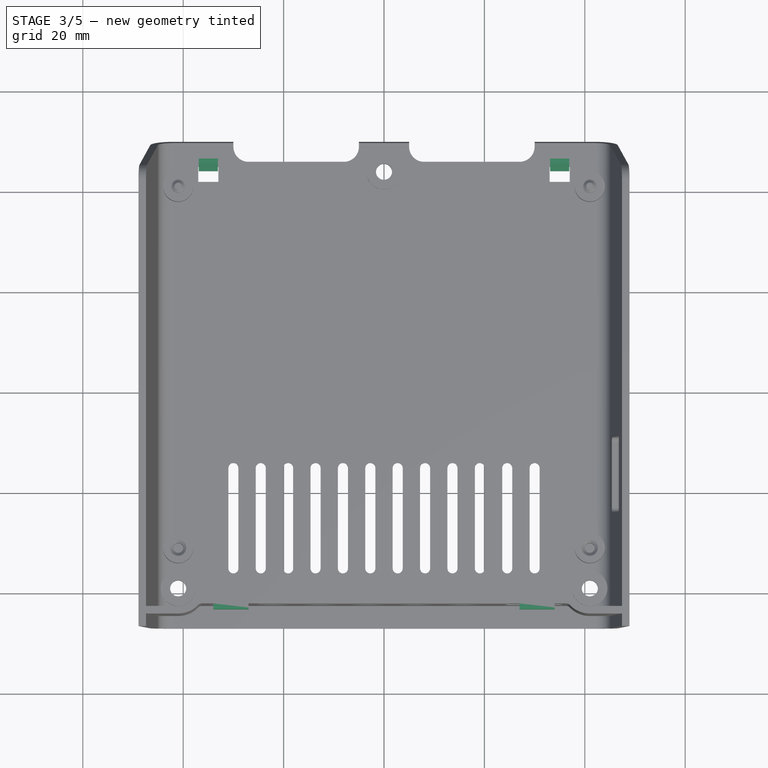
[diagram: stage 3 of 5 — top view after this stage's code; geometry added in this stage tinted green]
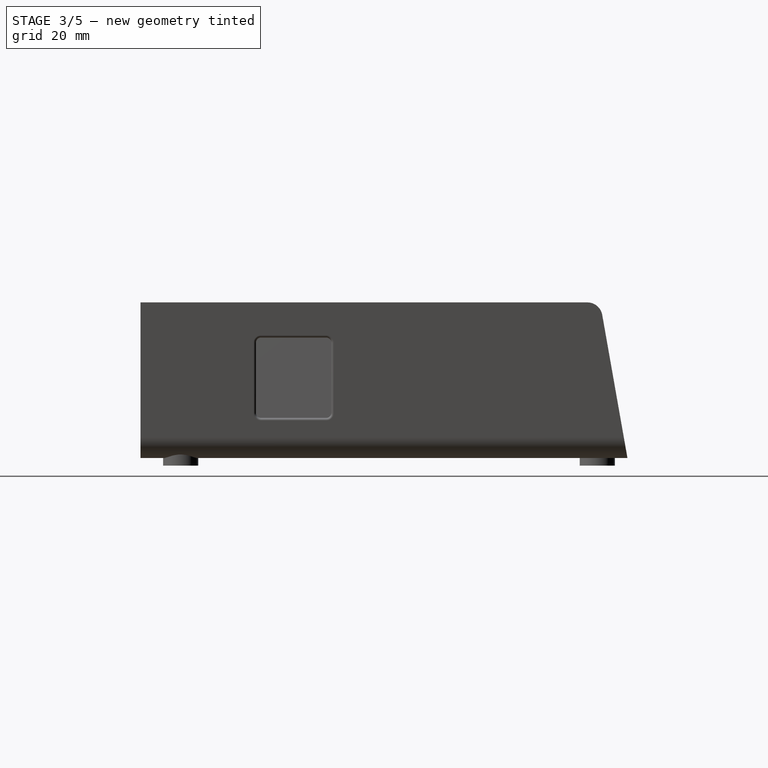
[diagram: stage 3 of 5 — right view after this stage's code; geometry added in this stage tinted green]
FEATURE [Sketcher::SketchObject] Sketch025
  MapMode = 5
  Support = -> [XY_Plane237]
  sketch-geometry (9):
    g0: LineSegment StartX=-37 StartY=85 StartZ=0 EndX=-33 EndY=85 EndZ=0
    g1: LineSegment StartX=-33 StartY=85 StartZ=0 EndX=-33 EndY=82 EndZ=0
    g2: LineSegment StartX=-33 StartY=82 StartZ=0 EndX=-37 EndY=82 EndZ=0
    g3: LineSegment StartX=-37 StartY=82 StartZ=0 EndX=-37 EndY=85 EndZ=0
    g4: LineSegment StartX=33 StartY=85 StartZ=0 EndX=37 EndY=85 EndZ=0
    g5: LineSegment StartX=37 StartY=85 StartZ=0 EndX=37 EndY=82 EndZ=0
    g6: LineSegment StartX=37 StartY=82 StartZ=0 EndX=33 EndY=82 EndZ=0
    g7: LineSegment StartX=33 StartY=82 StartZ=0 EndX=33 EndY=85 EndZ=0
    g8: LineSegment [constr] StartX=-33 StartY=85 StartZ=0 EndX=33 EndY=85 EndZ=0
  constraints (26):
    c: Coincident(g0,g1)
    c: Coincident(g1,g2)
    c: Coincident(g2,g3)
    c: Coincident(g3,g0)
    c: Horizontal(g0)
    c: Horizontal(g2)
    c: Vertical(g1)
    c: Vertical(g3)
    c: Coincident(g4,g5)
    c: Coincident(g5,g6)
    c: Coincident(g6,g7)
    c: Coincident(g7,g4)
    c: Horizontal(g4)
    c: Horizontal(g6)
    c: Vertical(g5)
    c: Vertical(g7)
    c: Coincident(g8,g0)
    c: Coincident(g8,g4)
    c: Horizontal(g8)
    c: Distance(g0,g-1) = 85
    c: Equal(g0,g4)
    c: Equal(g7,g1)
    c: Distance(g3) = 3
    c: Distance(g0) = 4
    c: Distance(g0,g-2) = 33
    c: Distance(g4,g-2) = 33
FEATURE [PartDesign::Pocket] Pocket012
  BaseFeature = -> Pocket011
  Length = 5
  Length2 = 100
  Placement = pos=(0,0,0) rot=(1,0,0;1.5708rad)
  Profile = -> Sketch025
  Reversed = true
  Type = 0
FEATURE [Sketcher::SketchObject] Sketch026
  AttachmentOffset = pos=(0,0,-35) rot=(0,0,1;0rad)
  ExternalGeometry = -> [Pocket012]
  MapMode = 5
  Placement = pos=(-35,3.952e-12,-3.952e-12) rot=(0.57735,0.57735,0.57735;2.0944rad)
  Support = -> [YZ_Plane237]
  sketch-geometry (7):
    g0: LineSegment StartX=85 StartY=1 StartZ=0 EndX=86.5 EndY=1 EndZ=0
    g1: LineSegment StartX=86.5 StartY=1 StartZ=0 EndX=86.5 EndY=10.7 EndZ=0
    g2: LineSegment StartX=86.5 StartY=10.7 StartZ=0 EndX=85.5 EndY=10.7 EndZ=0
    g3: LineSegment StartX=85.5 StartY=10.7 StartZ=0 EndX=84 EndY=9.2 EndZ=0
    g4: LineSegment StartX=84 StartY=9.2 StartZ=0 EndX=84 EndY=8.2 EndZ=0
    g5: LineSegment StartX=84 StartY=8.2 StartZ=0 EndX=85 EndY=8.2 EndZ=0
    g6: LineSegment StartX=85 StartY=8.2 StartZ=0 EndX=85 EndY=1 EndZ=0
  constraints (20):
    c: Horizontal(g0)
    c: Coincident(g0,g1)
    c: Vertical(g1)
    c: Coincident(g1,g2)
    c: Horizontal(g2)
    c: Coincident(g2,g3)
    c: Coincident(g3,g4)
    c: Vertical(g4)
    c: Coincident(g4,g5)
    c: Coincident(g5,g6)
    c: Vertical(g6)
    c: Coincident(g6,g0)
    c: Horizontal(g5)
    c: Angle(g3,g2) = 2.35619
    c: Distance(g0) = 1.5
    c: Distance(g6) = 7.2
    c: Distance(g5) = 1
    c: Distance(g4) = 1
    c: Distance(g0,g-1) = 1
    c: Distance(g2) = 1
FEATURE [PartDesign::Pad] Pad012
  BaseFeature = -> Pocket012
  Length = 3.8
  Length2 = 100
  Midplane = true
  Placement = pos=(0,0,0) rot=(1,0,0;1.5708rad)
  Profile = -> Sketch026
  Type = 0
FEATURE [PartDesign::Mirrored] Mirrored
  BaseFeature = -> Pad012
  MirrorPlane = -> YZ_Plane237
  Originals = -> [Pad012]
  Placement = pos=(0,0,0) rot=(1,0,0;1.5708rad)
FEATURE [Sketcher::SketchObject] Sketch027
  AttachmentOffset = pos=(0,0,31) rot=(0,0,1;0rad)
  MapMode = 5
  Placement = pos=(0,0,31) rot=(0,0,1;0rad)
  Support = -> [XY_Plane237]
  sketch-geometry (9):
    g0: LineSegment StartX=-34 StartY=-1.5 StartZ=0 EndX=-27 EndY=-1.5 EndZ=0
    g1: LineSegment StartX=-27 StartY=-1.5 StartZ=0 EndX=-27 EndY=-3.7 EndZ=0
    g2: LineSegment StartX=-27 StartY=-3.7 StartZ=0 EndX=-34 EndY=-3.7 EndZ=0
    g3: LineSegment StartX=-34 StartY=-3.7 StartZ=0 EndX=-34 EndY=-1.5 EndZ=0
    g4: LineSegment StartX=27 StartY=-1.5 StartZ=0 EndX=34 EndY=-1.5 EndZ=0
    g5: LineSegment StartX=34 StartY=-1.5 StartZ=0 EndX=34 EndY=-3.7 EndZ=0
    g6: LineSegment StartX=34 StartY=-3.7 StartZ=0 EndX=27 EndY=-3.7 EndZ=0
    g7: LineSegment StartX=27 StartY=-3.7 StartZ=0 EndX=27 EndY=-1.5 EndZ=0
    g8: LineSegment [constr] StartX=-27 StartY=-1.5 StartZ=0 EndX=27 EndY=-1.5 EndZ=0
  constraints (25):
    c: Coincident(g0,g1)
    c: Coincident(g1,g2)
    c: Coincident(g2,g3)
    c: Coincident(g3,g0)
    c: Horizontal(g0)
    c: Horizontal(g2)
    c: Vertical(g1)
    c: Vertical(g3)
    c: Coincident(g4,g5)
    c: Coincident(g5,g6)
    c: Coincident(g6,g7)
    c: Coincident(g7,g4)
    c: Horizontal(g4)
    c: Horizontal(g6)
    c: Vertical(g5)
    c: Vertical(g7)
    c: Coincident(g8,g0)
    c: Coincident(g8,g4)
    c: Horizontal(g8)
    c: Symmetric(g0,g4,g-2)
    c: Distance(g0) = 7
    c: Distance(g3) = 2.2
    c: Equal(g4,g0)
    c: Equal(g1,g7)
    c: Distance(g0,g-2) = 27
FEATURE [PartDesign::Pad] Pad013
  BaseFeature = -> Mirrored
  Length = 1.5
  Length2 = 100
  Placement = pos=(0,0,0) rot=(1,0,0;1.5708rad)
  Profile = -> Sketch027
  Reversed = true
  Type = 0
FEATURE [PartDesign::Body] Body005  label="Cover"
  Group = -> [Sketch015,Pad007,Sketch016,Pocket006,Sketch021,Pocket009,Fillet002,Fillet003,Sketch022,Pad011,Sketch029,Pad014,Sketch030,Pad015,Mirrored001,Sketch031,Pad016,Chamfer002,Fillet,Fillet004,Sketch032,Pad017]
  Origin = -> Origin339
  Tip = -> Pad017
FEATURE [PartDesign::Fillet] Fillet005
  Base = -> Pad013 [Edge455,Edge452,Edge453,Edge454,Edge451,Edge450,Edge446,Edge255]
  BaseFeature = -> Pad013
  Placement = pos=(0,0,0) rot=(1,0,0;1.5708rad)
  Radius = 0.5
FEATURE [PartDesign::Fillet] Fillet006
  Base = -> Fillet005 [Edge503,Edge578,Edge512,Edge579]
  BaseFeature = -> Fillet005
  Placement = pos=(0,0,0) rot=(1,0,0;1.5708rad)
  Radius = 0.4
FEATURE [Sketcher::SketchObject] Sketch033
  ExternalGeometry = -> [Fillet006]
  MapMode = 5
  Support = -> [XY_Plane237]
  sketch-geometry (2):
    g0: Circle CenterX=-41 CenterY=81 CenterZ=0 NormalX=0 NormalY=0 NormalZ=1 AngleXU=0 Radius=1.5
    g1: Circle CenterX=41 CenterY=81 CenterZ=0 NormalX=0 NormalY=0 NormalZ=1 AngleXU=0 Radius=1.5
  constraints (4):
    c: Coincident(g0,g-3)
    c: Coincident(g1,g-4)
    c: Radius(g0) = 1.5
    c: Equal(g1,g0)
FEATURE [PartDesign::Pocket] Pocket013
  BaseFeature = -> Fillet006
  Length = 10
  Length2 = 100
  Midplane = true
  Placement = pos=(0,0,0) rot=(1,0,0;1.5708rad)
  Profile = -> Sketch033
  Type = 0
FEATURE [PartDesign::Chamfer] Chamfer
  Base = -> Pocket013 [Edge609,Edge604,Edge580,Edge576]
  BaseFeature = -> Pocket013
  Placement = pos=(0,0,0) rot=(1,0,0;1.5708rad)
  Size = 0.6
FEATURE [PartDesign::Body] Body004  label="Bottom_Plastic"
  Group = -> [Sketch008,Pad004,Sketch009,Pad,Sketch010,Pocket004,Sketch011,Pad005,Sketch012,Sketch013,Pocket005,Pad008,Sketch,Pad009,Sketch017,Pad010,Sketch018,Pocket,Sketch019,Pocket007,LinearPattern,Sketch020,Pocket008,Sketch023,Pocket010,Sketch024,Pocket011,Sketch025,Pocket012,Sketch026,Pad012,Mirrored,Sketch027,Pad013,Fillet005,Fillet006,Sketch033,Pocket013,Chamfer]
  Origin = -> Origin237
  Tip = -> Chamfer
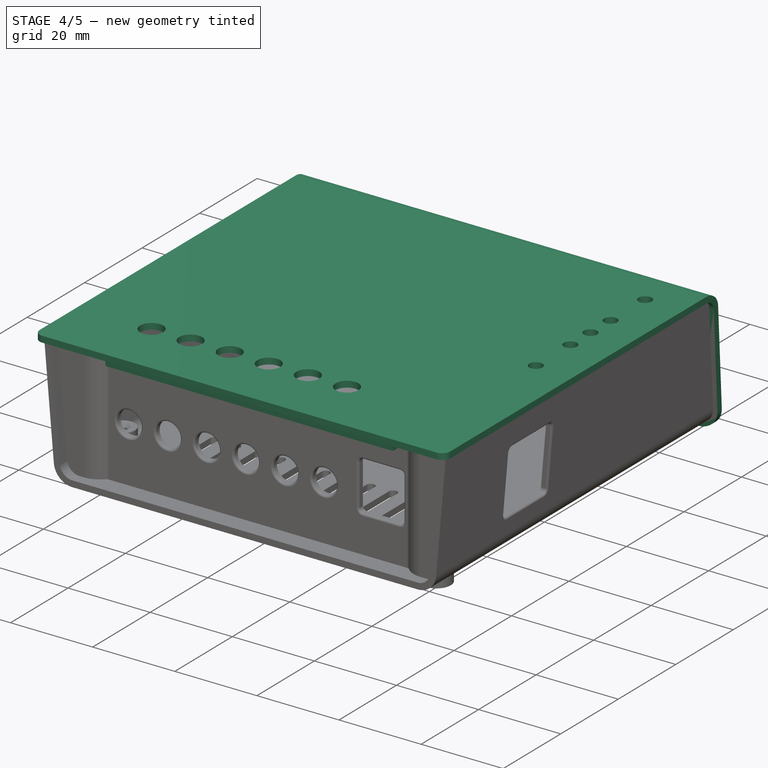
[diagram: stage 4 of 5 — iso view after this stage's code; geometry added in this stage tinted green]
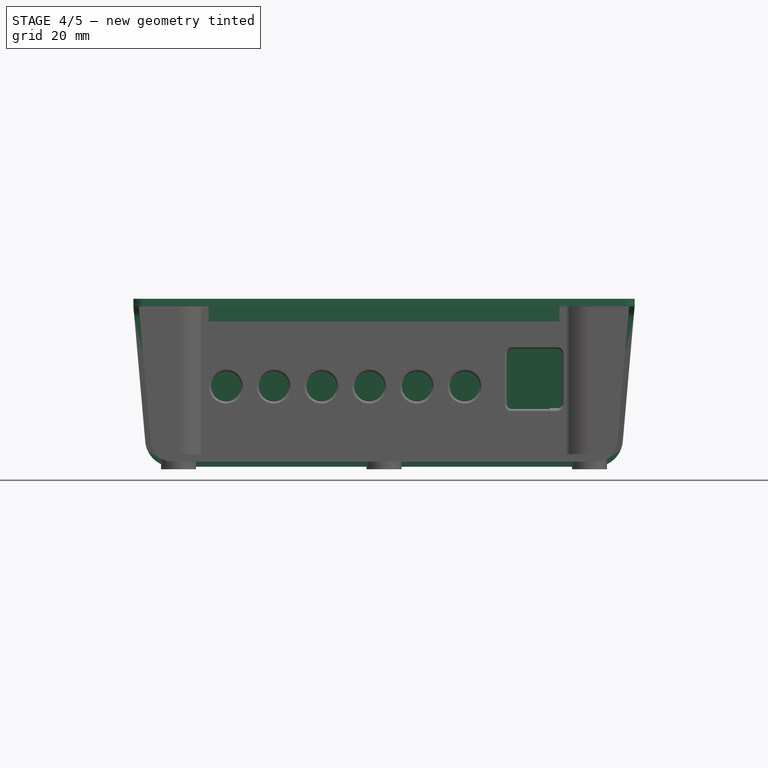
[diagram: stage 4 of 5 — front view after this stage's code; geometry added in this stage tinted green]
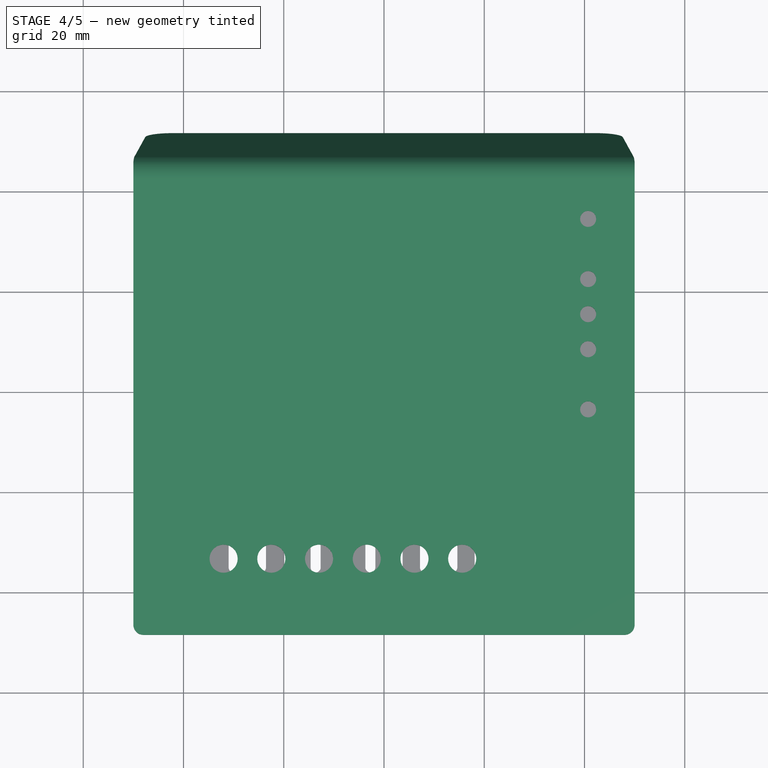
[diagram: stage 4 of 5 — top view after this stage's code; geometry added in this stage tinted green]
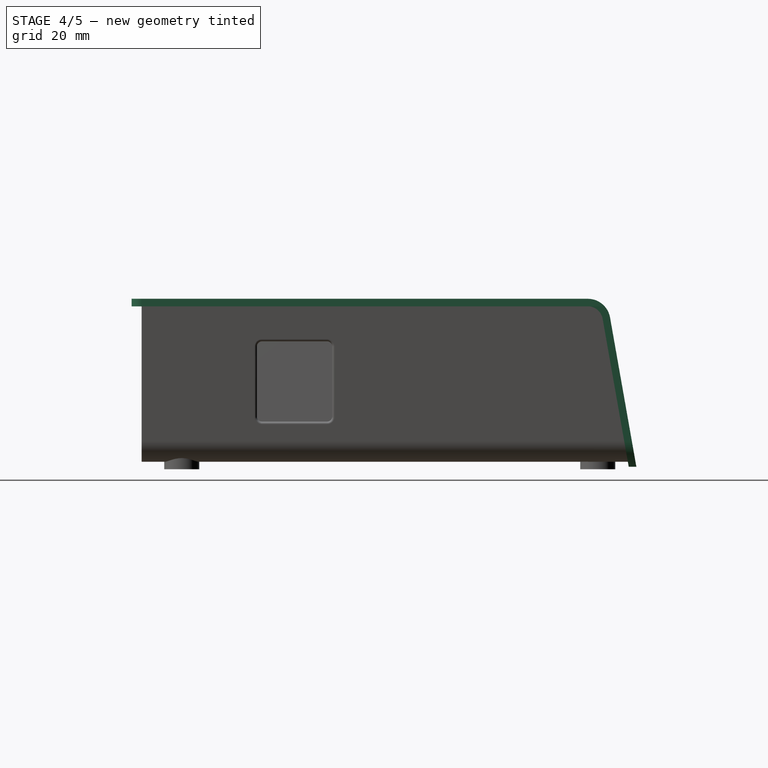
[diagram: stage 4 of 5 — right view after this stage's code; geometry added in this stage tinted green]
FEATURE [Sketcher::SketchObject] Sketch015
  MapMode = 5
  Placement = pos=(0,0,0) rot=(0.57735,0.57735,0.57735;2.0944rad)
  Support = -> [YZ_Plane339]
  sketch-geometry (9):
    g0: LineSegment StartX=-9 StartY=32.5 StartZ=0 EndX=82.0166 EndY=32.5 EndZ=0
    g1: LineSegment StartX=86.4482 StartY=28.7814 StartZ=0 EndX=91.6995 EndY=-1 EndZ=0
    g2: LineSegment StartX=91.6995 StartY=-1 StartZ=0 EndX=90.1763 EndY=-1 EndZ=0
    g3: LineSegment StartX=90.1763 StartY=-1 StartZ=0 EndX=84.971 EndY=28.521 EndZ=0
    g4: LineSegment StartX=82.0166 StartY=31 StartZ=0 EndX=-9 EndY=31 EndZ=0
    g5: ArcOfCircle CenterX=82.0166 CenterY=28 CenterZ=0 NormalX=0 NormalY=0 NormalZ=1 AngleXU=0 Radius=3 StartAngle=0.174539 EndAngle=1.5708
    g6: ArcOfCircle CenterX=82.0166 CenterY=28 CenterZ=0 NormalX=0 NormalY=0 NormalZ=1 AngleXU=0 Radius=4.5 StartAngle=0.174533 EndAngle=1.5708
    g7: LineSegment StartX=-9 StartY=32.5 StartZ=0 EndX=-9 EndY=31 EndZ=0
    g8: GeomPoint X=90 Y=0 Z=0
  constraints (27):
    c: Coincident(g1,g2)
    c: Coincident(g2,g3)
    c: Tangent(g3,g5)
    c: Coincident(g3,g5)
    c: Coincident(g6,g5)
    c: Tangent(g6,g1)
    c: Coincident(g1,g6)
    c: Parallel(g3,g1)
    c: Radius(g5) = 3
    c: Parallel(g0,g4)
    c: Coincident(g6,g0)
    c: Coincident(g4,g5)
    c: Tangent(g5,g4)
    c: Tangent(g6,g0)
    c: Horizontal(g4)
    c: Angle(g4,g3) = 1.74533
    c: Coincident(g7,g0)
    c: Coincident(g7,g4)
    c: Vertical(g7)
    c: PointOnObject(g8,g3)
    c: Horizontal(g2)
    c: Distance(g4,g-1) = 31
    c: Distance(g4,g-2) = 9
    c: Distance(g8,g-2) = 90
    c: Distance(g1,g-1) = 1
    c: Distance(g7) = 1.5
    c: PointOnObject(g8,g-1)
FEATURE [PartDesign::Pad] Pad007
  Length = 100
  Length2 = 100
  Midplane = true
  Placement = pos=(0,0,0) rot=(0.57735,0.57735,0.57735;2.0944rad)
  Profile = -> Sketch015
  Type = 0
FEATURE [Sketcher::SketchObject] Sketch016
  MapMode = 5
  Support = -> [XY_Plane339]
  sketch-geometry (13):
    g0: Circle CenterX=40.73 CenterY=48 CenterZ=0 NormalX=0 NormalY=0 NormalZ=1 AngleXU=0 Radius=1.6
    g1: Circle CenterX=40.73 CenterY=55 CenterZ=0 NormalX=0 NormalY=0 NormalZ=1 AngleXU=0 Radius=1.6
    g2: Circle CenterX=40.73 CenterY=62 CenterZ=0 NormalX=0 NormalY=0 NormalZ=1 AngleXU=0 Radius=1.6
    g3: Circle CenterX=40.73 CenterY=74 CenterZ=0 NormalX=0 NormalY=0 NormalZ=1 AngleXU=0 Radius=1.6
    g4: Circle CenterX=40.73 CenterY=36 CenterZ=0 NormalX=0 NormalY=0 NormalZ=1 AngleXU=0 Radius=1.6
    g5: Circle CenterX=-32 CenterY=6.2 CenterZ=0 NormalX=0 NormalY=0 NormalZ=1 AngleXU=0 Radius=2.8
    g6: Circle CenterX=-22.48 CenterY=6.2 CenterZ=0 NormalX=0 NormalY=0 NormalZ=1 AngleXU=0 Radius=2.8
    g7: Circle CenterX=-12.96 CenterY=6.2 CenterZ=0 NormalX=0 NormalY=0 NormalZ=1 AngleXU=0 Radius=2.8
    g8: Circle CenterX=-3.44 CenterY=6.2 CenterZ=0 NormalX=0 NormalY=0 NormalZ=1 AngleXU=0 Radius=2.8
    g9: Circle CenterX=6.08 CenterY=6.2 CenterZ=0 NormalX=0 NormalY=0 NormalZ=1 AngleXU=0 Radius=2.8
    g10: Circle CenterX=15.6 CenterY=6.2 CenterZ=0 NormalX=0 NormalY=0 NormalZ=1 AngleXU=0 Radius=2.8
    g11: LineSegment [constr] StartX=40.73 StartY=74 StartZ=0 EndX=40.73 EndY=36 EndZ=0
    g12: LineSegment [constr] StartX=-32 StartY=6.2 StartZ=0 EndX=15.6 EndY=6.2 EndZ=0
  constraints (41):
    c: Radius(g4) = 1.6
    c: Equal(g0,g4)
    c: Equal(g0,g1)
    c: Equal(g2,g1)
    c: Equal(g3,g2)
    c: Vertical(g11)
    c: PointOnObject(g3,g11)
    c: PointOnObject(g2,g11)
    c: PointOnObject(g1,g11)
    c: PointOnObject(g0,g11)
    c: PointOnObject(g4,g11)
    c: Distance(g0,g4) = 12
    c: Distance(g0,g1) = 7
    c: Distance(g1,g2) = 7
    c: Distance(g2,g3) = 12
    c: Equal(g5,g6)
    c: Equal(g6,g7)
    c: Equal(g7,g8)
    c: Equal(g8,g9)
    c: Equal(g9,g10)
    c: Horizontal(g12)
    c: PointOnObject(g5,g12)
    c: PointOnObject(g6,g12)
    c: PointOnObject(g7,g12)
    c: PointOnObject(g8,g12)
    c: PointOnObject(g9,g12)
    c: PointOnObject(g10,g12)
    c: Distance(g5,g6) = 9.52
    c: Distance(g6,g7) = 9.52
    c: Distance(g7,g8) = 9.52
    c: Distance(g8,g9) = 9.52
    c: Distance(g10,g9) = 9.52
    c: Radius(g10) = 2.8
    c: Distance(g11,g-2) = 40.73
    c: Distance(g12,g-1) = 6.2
    c: Distance(g4,g-1) = 36
    c: Distance(g10,g-2) = 15.6
    c: Coincident(g12,g10)
    c: Coincident(g12,g5)
    c: Coincident(g11,g4)
    c: Coincident(g11,g3)
FEATURE [PartDesign::Pocket] Pocket006
  BaseFeature = -> Pad007
  Length = 5
  Length2 = 100
  Placement = pos=(0,0,0) rot=(0.57735,0.57735,0.57735;2.0944rad)
  Profile = -> Sketch016
  Reversed = true
  Type = 1
FEATURE [Sketcher::SketchObject] Sketch021
  MapMode = 5
  Placement = pos=(0,0,0) rot=(1,0,0;1.5708rad)
  Support = -> [XZ_Plane339]
  sketch-geometry (8):
    g0: LineSegment StartX=-61.9379 StartY=31 StartZ=0 EndX=-50 EndY=31 EndZ=0
    g1: LineSegment StartX=-50 StartY=31 StartZ=0 EndX=-46.9379 EndY=-4 EndZ=0
    g2: LineSegment StartX=-46.9379 StartY=-4 StartZ=0 EndX=-61.9379 EndY=-4 EndZ=0
    g3: LineSegment StartX=-61.9379 StartY=31 StartZ=0 EndX=-61.9379 EndY=-4 EndZ=0
    g4: LineSegment StartX=50 StartY=31 StartZ=0 EndX=46.9379 EndY=-4 EndZ=0
    g5: LineSegment StartX=46.9379 StartY=-4 StartZ=0 EndX=61.9379 EndY=-4 EndZ=0
    g6: LineSegment StartX=61.9379 StartY=-4 StartZ=0 EndX=61.9379 EndY=31 EndZ=0
    g7: LineSegment StartX=50 StartY=31 StartZ=0 EndX=61.9379 EndY=31 EndZ=0
  constraints (24):
    c: Horizontal(g0)
    c: Coincident(g1,g0)
    c: Coincident(g2,g1)
    c: Horizontal(g2)
    c: Coincident(g3,g0)
    c: Coincident(g5,g4)
    c: Horizontal(g5)
    c: Vertical(g6)
    c: Coincident(g7,g4)
    c: Coincident(g7,g6)
    c: Horizontal(g7)
    c: Distance(g0,g-2) = 50
    c: Distance(g4,g-2) = 50
    c: Angle(g4,g7) = 1.65806
    c: Angle(g0,g1) = 1.65806
    c: Vertical(g3)
    c: Coincident(g2,g3)
    c: Distance(g0,g-1) = 31
    c: Distance(g4,g-1) = 31
    c: Coincident(g5,g6)
    c: Distance(g6) = 35
    c: Equal(g6,g3)
    c: Equal(g5,g2)
    c: Distance(g5) = 15
FEATURE [PartDesign::Pocket] Pocket009
  BaseFeature = -> Pocket006
  Length = 5
  Length2 = 100
  Placement = pos=(0,0,0) rot=(0.57735,0.57735,0.57735;2.0944rad)
  Profile = -> Sketch021
  Type = 1
FEATURE [PartDesign::Fillet] Fillet002
  Base = -> Pocket009 [Edge55,Edge59]
  BaseFeature = -> Pocket009
  Placement = pos=(0,0,0) rot=(0.57735,0.57735,0.57735;2.0944rad)
  Radius = 5.5
FEATURE [PartDesign::Fillet] Fillet003
  Base = -> Fillet002 [Edge46,Edge20]
  BaseFeature = -> Fillet002
  Placement = pos=(0,0,0) rot=(0.57735,0.57735,0.57735;2.0944rad)
  Radius = 2
FEATURE [Sketcher::SketchObject] Sketch022
  MapMode = 5
  Placement = pos=(0,0,0) rot=(1,0,0;1.5708rad)
  Support = -> [XZ_Plane339]
  sketch-geometry (9):
    g0: LineSegment StartX=-47.5 StartY=31 StartZ=0 EndX=-47.325 EndY=29 EndZ=0
    g1: LineSegment StartX=-47.325 StartY=29 StartZ=0 EndX=-45.675 EndY=29 EndZ=0
    g2: LineSegment StartX=-45.675 StartY=29 StartZ=0 EndX=-45.5 EndY=31 EndZ=0
    g3: LineSegment StartX=-45.5 StartY=31 StartZ=0 EndX=-47.5 EndY=31 EndZ=0
    g4: LineSegment StartX=47.5 StartY=31 StartZ=0 EndX=47.325 EndY=29 EndZ=0
    g5: LineSegment StartX=47.325 StartY=29 StartZ=0 EndX=45.675 EndY=29 EndZ=0
    g6: LineSegment StartX=45.675 StartY=29 StartZ=0 EndX=45.5 EndY=31 EndZ=0
    g7: LineSegment StartX=45.5 StartY=31 StartZ=0 EndX=47.5 EndY=31 EndZ=0
    g8: LineSegment [constr] StartX=-46.2312 StartY=31 StartZ=0 EndX=49.8626 EndY=31 EndZ=0
  constraints (26):
    c: Coincident(g0,g1)
    c: Horizontal(g1)
    c: Coincident(g1,g2)
    c: Coincident(g2,g3)
    c: Coincident(g4,g5)
    c: Horizontal(g5)
    c: Coincident(g5,g6)
    c: Coincident(g6,g7)
    c: Coincident(g7,g4)
    c: Horizontal(g3)
    c: Coincident(g3,g0)
    c: Angle(g1,g0) = 1.65806
    c: Horizontal(g7)
    c: Equal(g6,g4)
    c: Equal(g5,g1)
    c: Equal(g3,g7)
    c: Angle(g2,g1) = 1.65806
    c: Horizontal(g8)
    c: PointOnObject(g6,g8)
    c: PointOnObject(g2,g8)
    c: Distance(g2,g1) = 2
    c: Distance(g3) = 2
    c: Distance(g0,g-2) = 47.5
    c: Distance(g4,g-2) = 47.5
    c: Distance(g8,g-1) = 31
    c: Equal(g6,g2)
FEATURE [PartDesign::Pad] Pad011
  BaseFeature = -> Fillet003
  Length = 80
  Length2 = 100
  Placement = pos=(0,0,0) rot=(0.57735,0.57735,0.57735;2.0944rad)
  Profile = -> Sketch022
  Reversed = true
  Type = 0
FEATURE [Sketcher::SketchObject] Sketch029
  MapMode = 5
  Placement = pos=(0,0,0) rot=(0.57735,0.57735,0.57735;2.0944rad)
  Support = -> [YZ_Plane339]
  sketch-geometry (4):
    g0: LineSegment StartX=-5.84995 StartY=32 StartZ=0 EndX=-4 EndY=32 EndZ=0
    g1: LineSegment StartX=-4 StartY=32 StartZ=0 EndX=-4 EndY=28 EndZ=0
    g2: LineSegment StartX=-4 StartY=28 StartZ=0 EndX=-5.5 EndY=28 EndZ=0
    g3: LineSegment StartX=-5.5 StartY=28 StartZ=0 EndX=-5.84995 EndY=32 EndZ=0
  constraints (12):
    c: Horizontal(g0)
    c: Coincident(g0,g1)
    c: Vertical(g1)
    c: Coincident(g1,g2)
    c: Horizontal(g2)
    c: Coincident(g2,g3)
    c: Coincident(g3,g0)
    c: Distance(g0,g-1) = 32
    c: Distance(g1) = 4
    c: Distance(g2) = 1.5
    c: Angle(g2,g3) = 1.65806
    c: Distance(g0,g-2) = 4
FEATURE [PartDesign::Pad] Pad014
  BaseFeature = -> Pad011
  Length = 70
  Length2 = 100
  Midplane = true
  Placement = pos=(0,0,0) rot=(0.57735,0.57735,0.57735;2.0944rad)
  Profile = -> Sketch029
  Type = 0
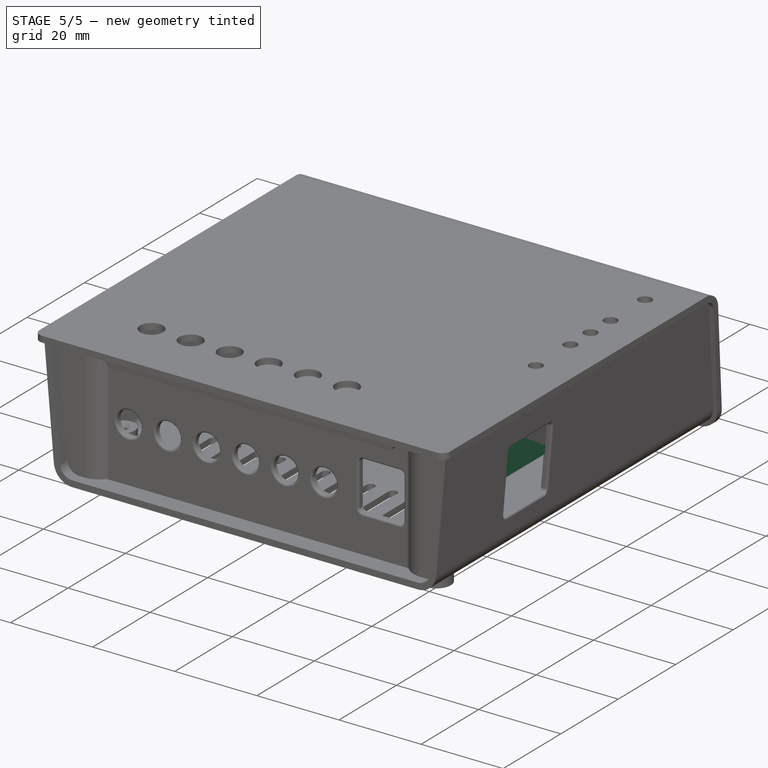
[diagram: stage 5 of 5 — iso view after this stage's code; geometry added in this stage tinted green]
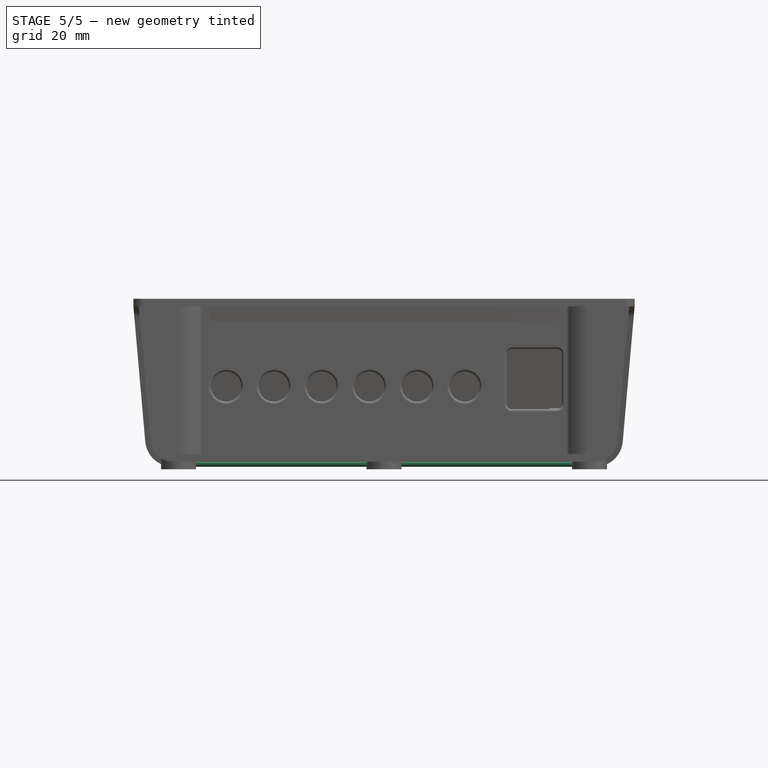
[diagram: stage 5 of 5 — front view after this stage's code; geometry added in this stage tinted green]
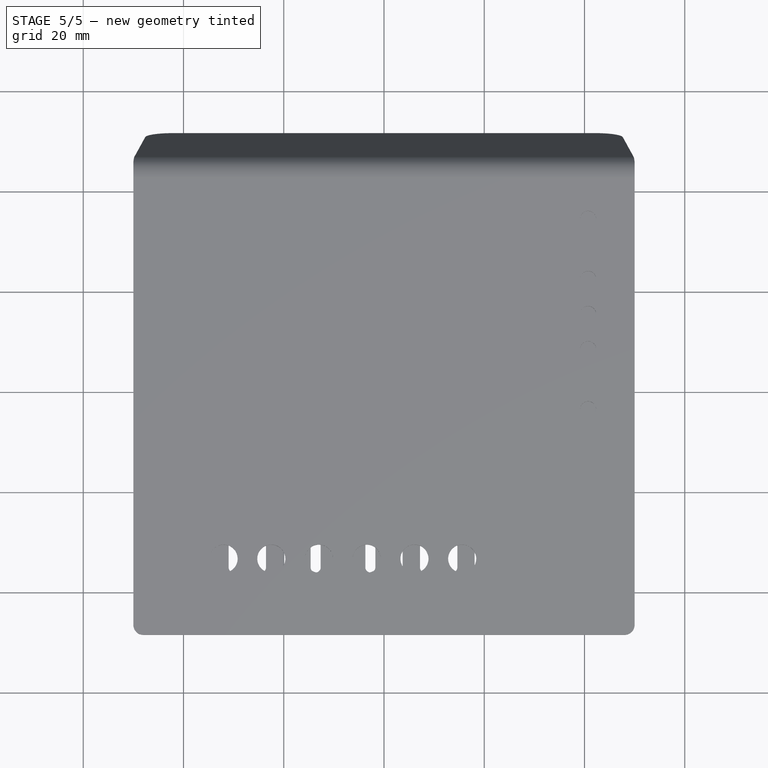
[diagram: stage 5 of 5 — top view after this stage's code; geometry added in this stage tinted green]
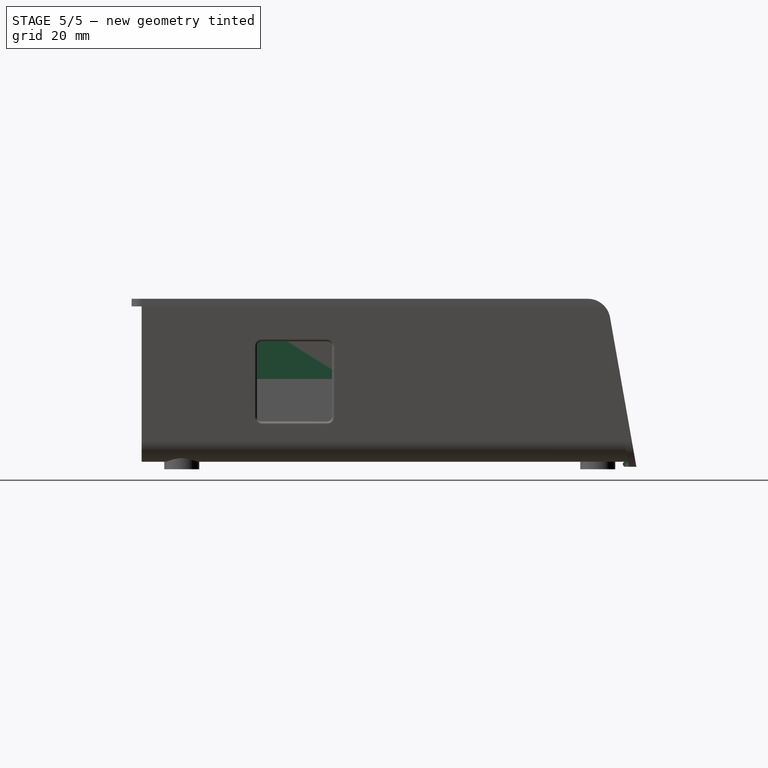
[diagram: stage 5 of 5 — right view after this stage's code; geometry added in this stage tinted green]
FEATURE [Sketcher::SketchObject] Sketch030
  AttachmentOffset = pos=(0,0,-30.5) rot=(0,0,1;0rad)
  ExternalGeometry = -> [Pad014]
  MapMode = 5
  Placement = pos=(-30.5,3.4437e-12,-3.4437e-12) rot=(0.57735,0.57735,0.57735;2.0944rad)
  Support = -> [YZ_Plane339]
  sketch-geometry (4):
    g0: LineSegment StartX=-4 StartY=28 StartZ=0 EndX=-3 EndY=28 EndZ=0
    g1: LineSegment StartX=-3 StartY=28 StartZ=0 EndX=-3 EndY=29.4 EndZ=0
    g2: LineSegment StartX=-3 StartY=29.4 StartZ=0 EndX=-4 EndY=29.4 EndZ=0
    g3: LineSegment StartX=-4 StartY=28 StartZ=0 EndX=-4 EndY=29.4 EndZ=0
  constraints (11):
    c: Coincident(g0,g-3)
    c: Horizontal(g0)
    c: Coincident(g1,g0)
    c: Vertical(g1)
    c: Coincident(g2,g1)
    c: Horizontal(g2)
    c: Coincident(g3,g0)
    c: Coincident(g3,g2)
    c: Vertical(g3)
    c: Distance(g0) = 1
    c: Distance(g1) = 1.4
FEATURE [PartDesign::Pad] Pad015
  BaseFeature = -> Pad014
  Length = 6
  Length2 = 100
  Midplane = true
  Placement = pos=(0,0,0) rot=(0.57735,0.57735,0.57735;2.0944rad)
  Profile = -> Sketch030
  Type = 0
FEATURE [PartDesign::Mirrored] Mirrored001
  BaseFeature = -> Pad015
  MirrorPlane = -> YZ_Plane339
  Originals = -> [Pad015]
  Placement = pos=(0,0,0) rot=(0.57735,0.57735,0.57735;2.0944rad)
FEATURE [Sketcher::SketchObject] Sketch031
  ExternalGeometry = -> [Mirrored001]
  MapMode = 5
  Placement = pos=(0,0,0) rot=(0.57735,0.57735,0.57735;2.0944rad)
  Support = -> [YZ_Plane339]
  sketch-geometry (4):
    g0: LineSegment StartX=89 StartY=0 StartZ=0 EndX=90.5 EndY=0 EndZ=0
    g1: LineSegment StartX=90.5 StartY=0 StartZ=0 EndX=90.5 EndY=-1 EndZ=0
    g2: LineSegment StartX=90.5 StartY=-1 StartZ=0 EndX=89 EndY=-1 EndZ=0
    g3: LineSegment StartX=89 StartY=-1 StartZ=0 EndX=89 EndY=0 EndZ=0
  constraints (12):
    c: Coincident(g0,g1)
    c: Coincident(g1,g2)
    c: Coincident(g2,g3)
    c: Coincident(g3,g0)
    c: Horizontal(g0)
    c: Horizontal(g2)
    c: Vertical(g1)
    c: Vertical(g3)
    c: PointOnObject(g0,g-1)
    c: PointOnObject(g2,g-3)
    c: Distance(g1,g-2) = 90.5
    c: Distance(g2) = 1.5
FEATURE [PartDesign::Pad] Pad016
  BaseFeature = -> Mirrored001
  Length = 80
  Length2 = 100
  Midplane = true
  Placement = pos=(0,0,0) rot=(0.57735,0.57735,0.57735;2.0944rad)
  Profile = -> Sketch031
  Type = 0
FEATURE [PartDesign::Chamfer] Chamfer002
  Base = -> Pad016 [Edge153,Edge147]
  BaseFeature = -> Pad016
  Placement = pos=(0,0,0) rot=(0.57735,0.57735,0.57735;2.0944rad)
  Size = 0.3
FEATURE [PartDesign::Fillet] Fillet
  Base = -> Chamfer002 [Edge159,Edge154,Edge158,Edge147]
  BaseFeature = -> Chamfer002
  Placement = pos=(0,0,0) rot=(0.57735,0.57735,0.57735;2.0944rad)
  Radius = 0.4
FEATURE [PartDesign::Fillet] Fillet004
  Base = -> Fillet [Edge30,Edge31]
  BaseFeature = -> Fillet
  Placement = pos=(0,0,0) rot=(0.57735,0.57735,0.57735;2.0944rad)
  Radius = 1
FEATURE [Sketcher::SketchObject] Sketch032
  AttachmentOffset = pos=(0,0,-24) rot=(0,0,1;0rad)
  ExternalGeometry = -> [Fillet004]
  MapMode = 5
  Placement = pos=(0,24,2.4833e-12) rot=(1,0,0;1.5708rad)
  Support = -> [XZ_Plane339]
  sketch-geometry (4):
    g0: LineSegment StartX=45.675 StartY=29 StartZ=0 EndX=47.325 EndY=29 EndZ=0
    g1: LineSegment StartX=47.325 StartY=29 StartZ=0 EndX=46.4509 EndY=16.5 EndZ=0
    g2: LineSegment StartX=46.4509 StartY=16.5 StartZ=0 EndX=45.675 EndY=16.5 EndZ=0
    g3: LineSegment StartX=45.675 StartY=16.5 StartZ=0 EndX=45.675 EndY=29 EndZ=0
  constraints (10):
    c: Coincident(g-3,g0)
    c: Coincident(g0,g-3)
    c: Coincident(g0,g1)
    c: Coincident(g1,g2)
    c: Horizontal(g2)
    c: Coincident(g2,g3)
    c: Coincident(g3,g0)
    c: Angle(g2,g3) = 1.5708
    c: Angle(g1,g2) = 1.64061
    c: Distance(g0,g2) = 12.5
FEATURE [PartDesign::Pad] Pad017
  BaseFeature = -> Fillet004
  Length = 20
  Length2 = 100
  Midplane = true
  Placement = pos=(0,0,0) rot=(0.57735,0.57735,0.57735;2.0944rad)
  Profile = -> Sketch032
  Type = 0
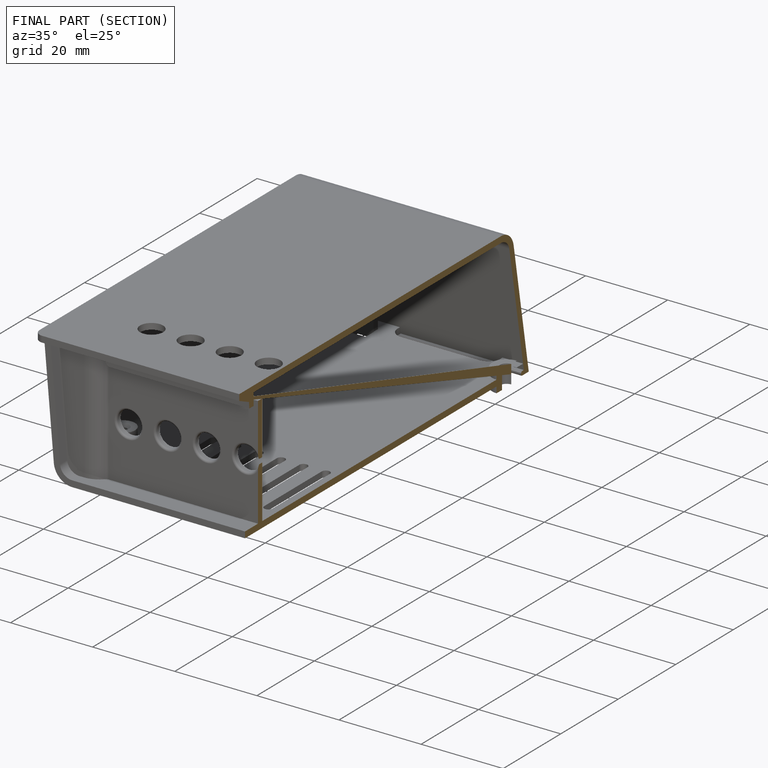
[diagram: finished part — half-section view (interior)]
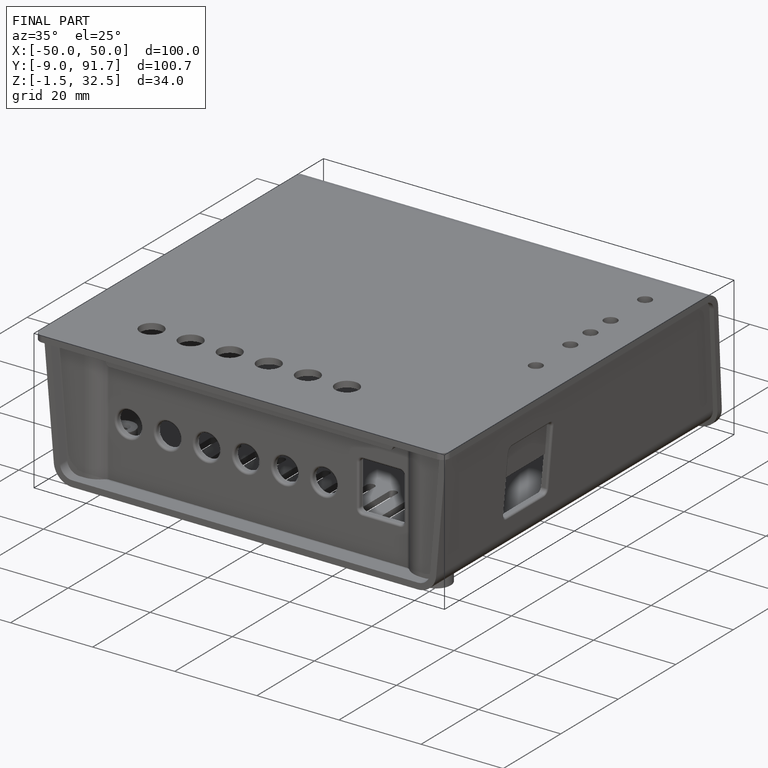
[diagram: finished part — iso view with bounding-box wireframe]
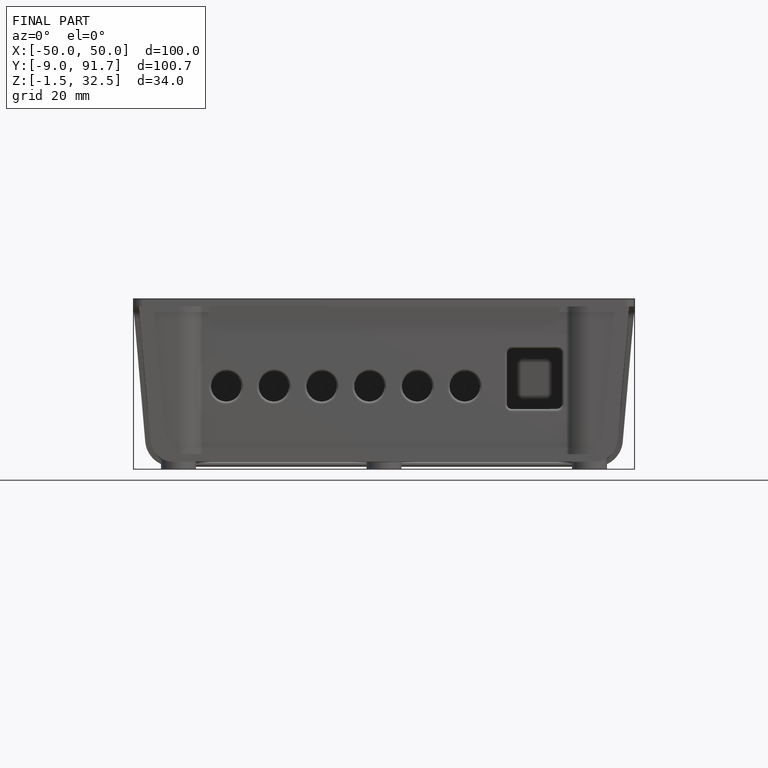
[diagram: finished part — front view with bounding-box wireframe]
